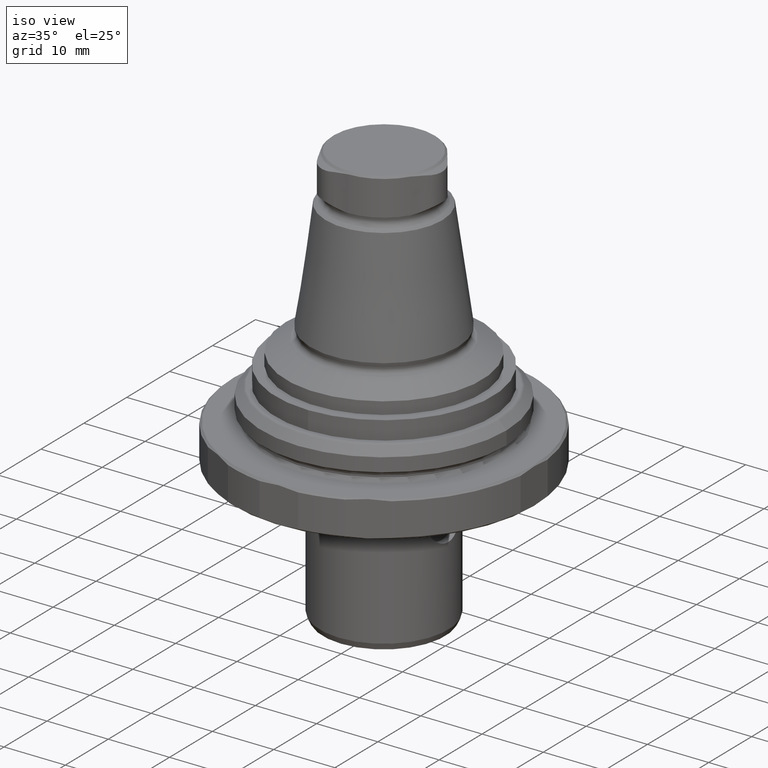
[diagram: clean part render]
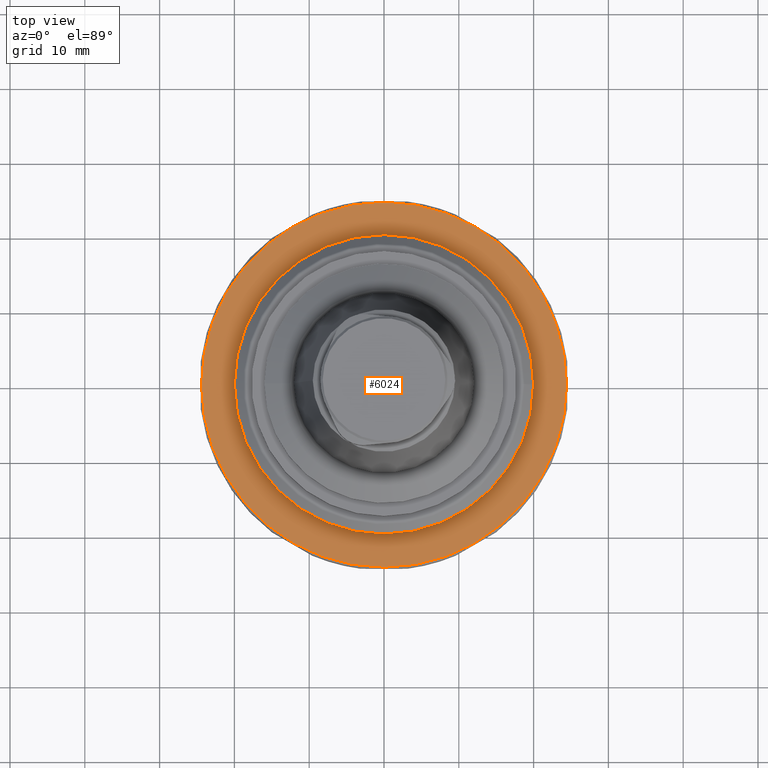
[diagram: tour spotlight — one face highlighted and labeled with its STEP entity id]
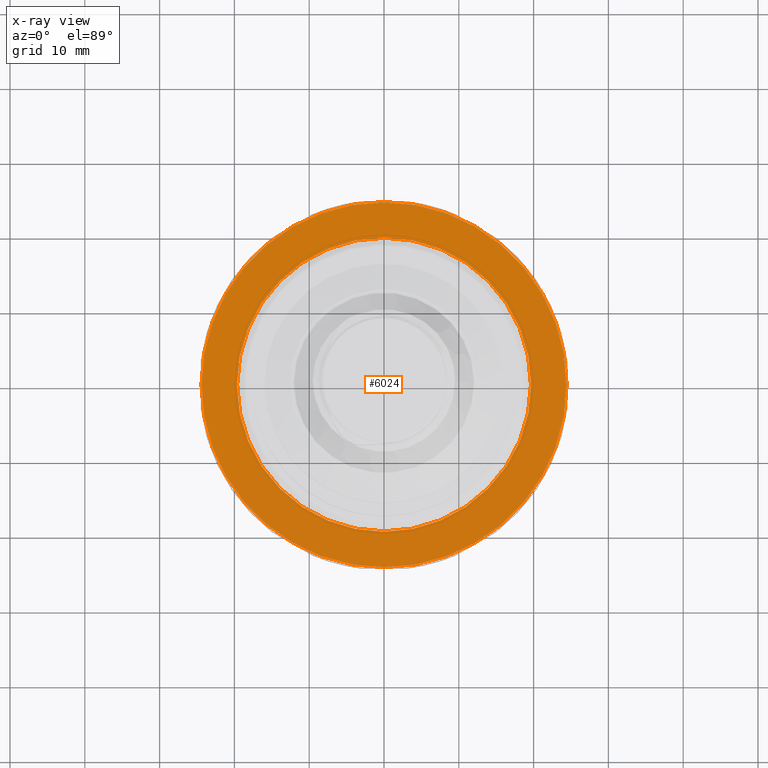
[diagram: x-ray of the same camera — body ghosted, this tour face saturated]
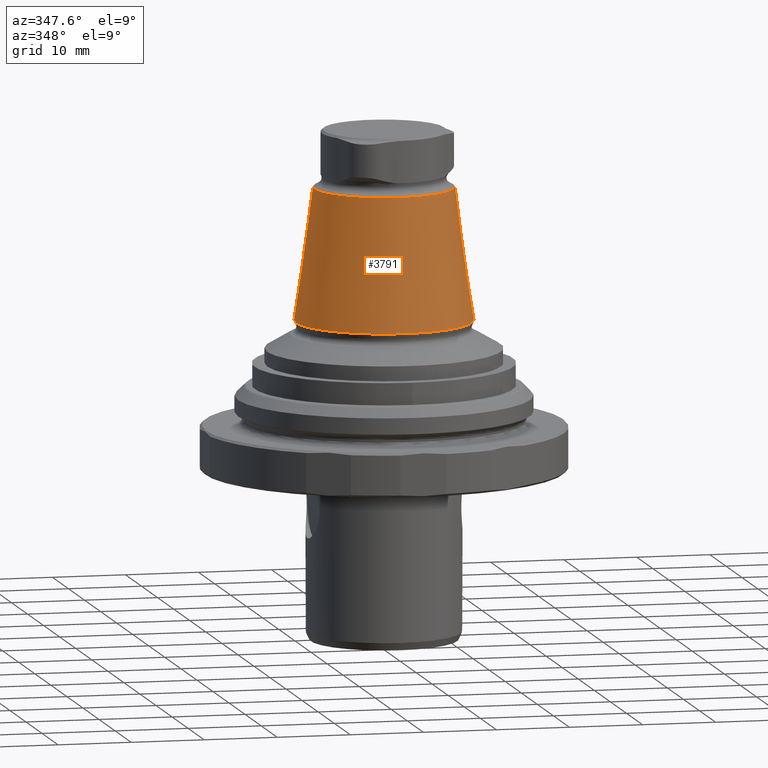
[diagram: tour spotlight — one face highlighted and labeled with its STEP entity id]
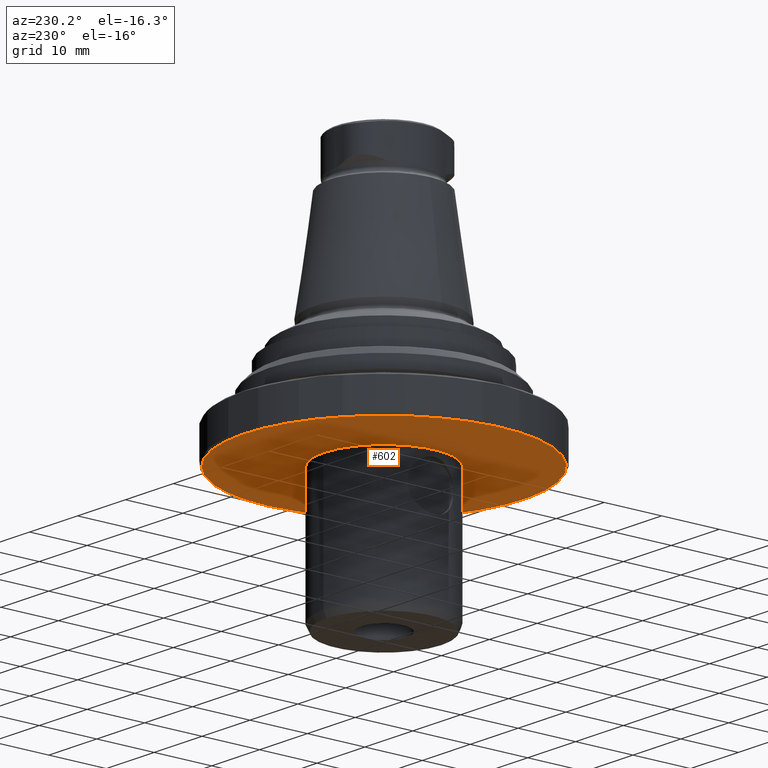
[diagram: tour spotlight — one face highlighted and labeled with its STEP entity id]
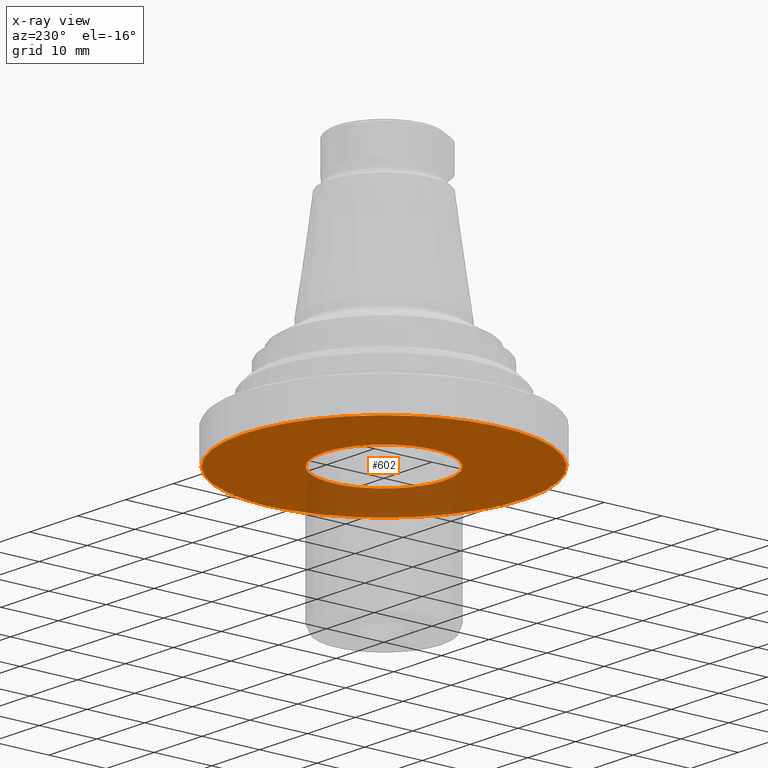
[diagram: x-ray of the same camera — body ghosted, this tour face saturated]
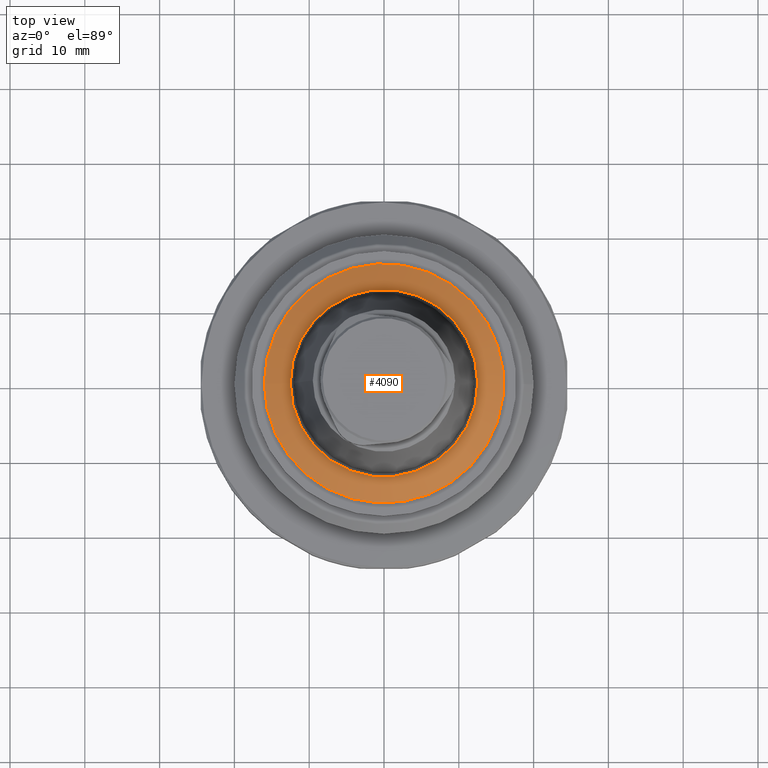
[diagram: tour spotlight — one face highlighted and labeled with its STEP entity id]
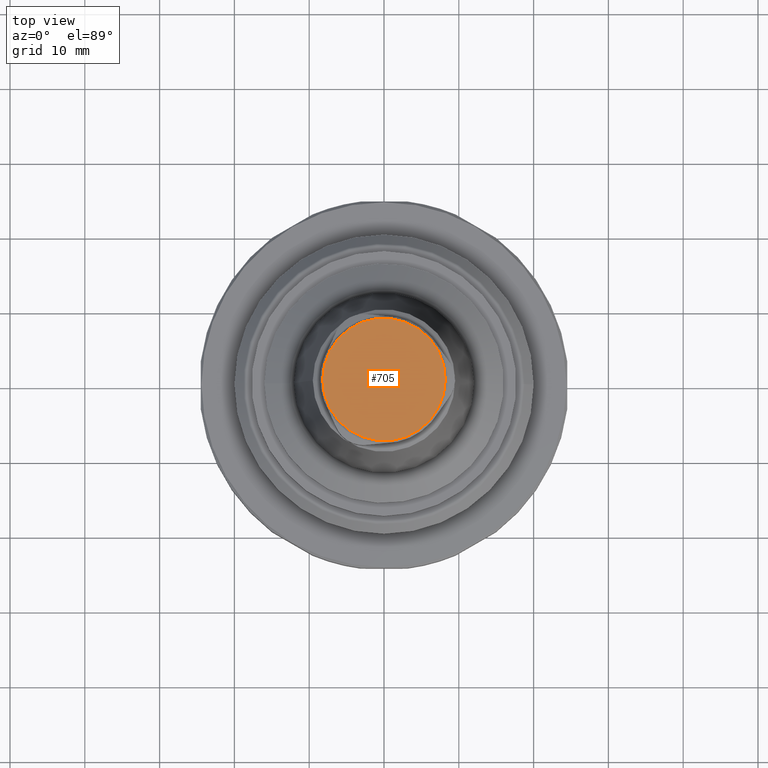
[diagram: tour spotlight — one face highlighted and labeled with its STEP entity id]
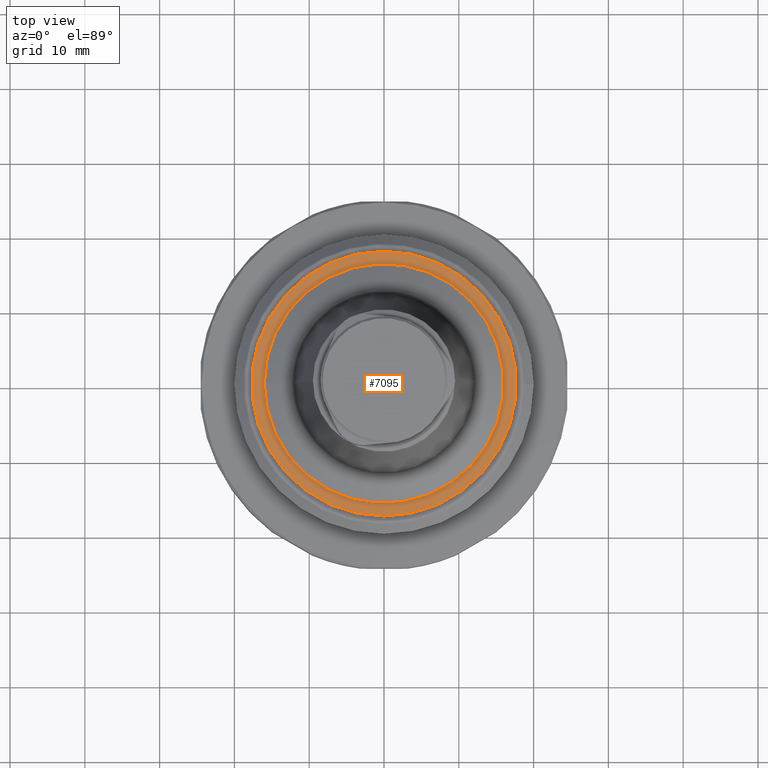
[diagram: tour spotlight — one face highlighted and labeled with its STEP entity id]
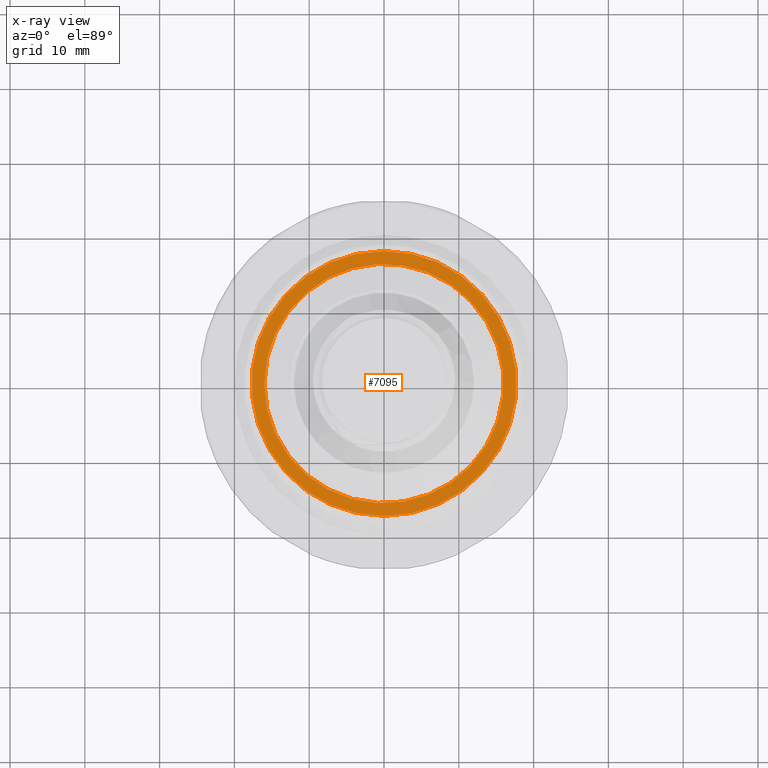
[diagram: x-ray of the same camera — body ghosted, this tour face saturated]
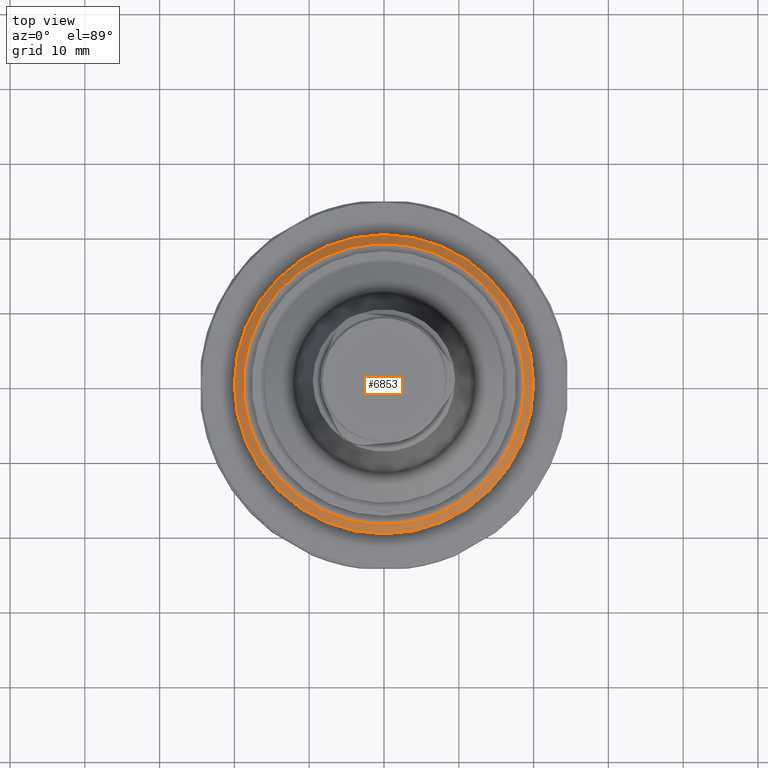
[diagram: tour spotlight — one face highlighted and labeled with its STEP entity id]
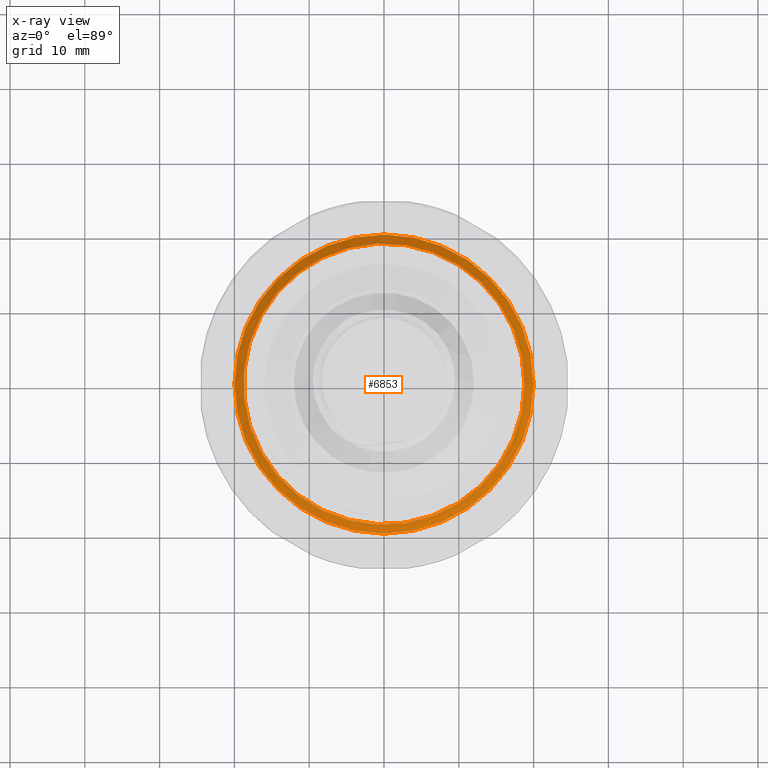
[diagram: x-ray of the same camera — body ghosted, this tour face saturated]
A machine part: a face-by-face anatomy tour. The part has 66 B-rep faces; the first image is the clean iso view, then the 7 largest visible faces are spotlighted one at a time (largest first), each with its STEP entity span.

Face 1 — top view, entity #6024. An x-ray twin of the same camera follows (body ghosted, this face saturated) — the face is partly hidden behind the body. In plain terms, the highlighted planar face has unit normal (-0, 0, -1).
Definition (entity closure, byte-faithful):
#4238 = CONICAL_SURFACE('',#4239,24.4,0.785398163398);
#4239 = AXIS2_PLACEMENT_3D('',#4240,#4241,#4242);
#4240 = CARTESIAN_POINT('',(-1.407041003276E-017,-9.089951014118E-016,
    -1.));
#4241 = DIRECTION('',(-2.605631487548E-018,5.607991387788E-033,-1.));
#4242 = DIRECTION('',(1.,-2.440810140808E-016,-2.605631487548E-018));
#4948 = VERTEX_POINT('',#4949);
#4949 = CARTESIAN_POINT('',(24.4,-6.864571844983E-015,-1.));
#4969 = EDGE_CURVE('',#4948,#4948,#4970,.T.);
#4970 = SURFACE_CURVE('',#4971,(#4976,#5005),.PCURVE_S1.);
#4971 = CIRCLE('',#4972,24.4);
#4972 = AXIS2_PLACEMENT_3D('',#4973,#4974,#4975);
#4973 = CARTESIAN_POINT('',(-1.407041003276E-017,-9.089951014118E-016,
    -1.));
#4974 = DIRECTION('',(-2.605631487548E-018,5.607991387788E-033,-1.));
#4975 = DIRECTION('',(1.,-2.440810140808E-016,-2.605631487548E-018));
#4976 = PCURVE('',#4238,#4977);
#4977 = DEFINITIONAL_REPRESENTATION('',(#4978),#5004);
#4978 = B_SPLINE_CURVE_WITH_KNOTS('',3,(#4979,#4980,#4981,#4982,#4983,
    #4984,#4985,#4986,#4987,#4988,#4989,#4990,#4991,#4992,#4993,#4994,
    #4995,#4996,#4997,#4998,#4999,#5000,#5001,#5002,#5003),
  .UNSPECIFIED.,.F.,.F.,(4,1,1,1,1,1,1,1,1,1,1,1,1,1,1,1,1,1,1,1,1,1,4),
  (0.E+000,0.285599332145,0.571198664289,0.856797996434,1.142397328578,
    1.427996660723,1.713595992867,1.999195325012,2.284794657156,
    2.570393989301,2.855993321445,3.14159265359,3.427191985734,
    3.712791317879,3.998390650023,4.283989982168,4.569589314312,
    4.855188646457,5.140787978601,5.426387310746,5.711986642891,
    5.997585975035,6.28318530718),.QUASI_UNIFORM_KNOTS.);
#4979 = CARTESIAN_POINT('',(0.E+000,-5.551115123121E-017));
#4980 = CARTESIAN_POINT('',(9.519977738151E-002,-1.853455660555E-015));
#4981 = CARTESIAN_POINT('',(0.285599332145,-2.476382663924E-015));
#4982 = CARTESIAN_POINT('',(0.571198664289,4.563148707783E-016));
#4983 = CARTESIAN_POINT('',(0.856797996434,6.51123180811E-016));
#4984 = CARTESIAN_POINT('',(1.142397328578,-3.060807594022E-015));
#4985 = CARTESIAN_POINT('',(1.427996660723,9.339661588773E-016));
#4986 = CARTESIAN_POINT('',(1.713595992867,-6.750570414868E-016));
#4987 = CARTESIAN_POINT('',(1.999195325012,1.76626200707E-015));
#4988 = CARTESIAN_POINT('',(2.284794657156,-6.389990986793E-015));
#4989 = CARTESIAN_POINT('',(2.570393989301,2.477419867298E-015));
#4990 = CARTESIAN_POINT('',(2.855993321445,-3.5196884824E-015));
#4991 = CARTESIAN_POINT('',(3.14159265359,9.431930259018E-016));
#4992 = CARTESIAN_POINT('',(3.427191985734,-2.530836212069E-016));
#4993 = CARTESIAN_POINT('',(3.712791317879,6.914145892594E-017));
#4994 = CARTESIAN_POINT('',(3.998390650023,-2.348221449682E-017));
#4995 = CARTESIAN_POINT('',(4.283989982168,2.478739906135E-017));
#4996 = CARTESIAN_POINT('',(4.569589314312,-7.566738174856E-017));
#4997 = CARTESIAN_POINT('',(4.855188646457,2.778821279329E-016));
#4998 = CARTESIAN_POINT('',(5.140787978601,-1.035861129983E-015));
#4999 = CARTESIAN_POINT('',(5.426387310746,3.865562391999E-015));
#5000 = CARTESIAN_POINT('',(5.711986642891,-3.768247401613E-015));
#5001 = CARTESIAN_POINT('',(5.997585975035,5.492861780496E-016));
#5002 = CARTESIAN_POINT('',(6.187985529798,1.008452580701E-015));
#5003 = CARTESIAN_POINT('',(6.28318530718,-5.551115123121E-017));
#5004 = ( GEOMETRIC_REPRESENTATION_CONTEXT(2) 
PARAMETRIC_REPRESENTATION_CONTEXT() REPRESENTATION_CONTEXT('2D SPACE',''
  ) );
#5005 = PCURVE('',#5006,#5011);
#5006 = PLANE('',#5007);
#5007 = AXIS2_PLACEMENT_3D('',#5008,#5009,#5010);
#5008 = CARTESIAN_POINT('',(19.65,-5.7051870281E-015,-1.));
#5009 = DIRECTION('',(-2.605631487548E-018,5.607991387788E-033,-1.));
#5010 = DIRECTION('',(1.,-2.440810140808E-016,-2.605631487548E-018));
#5011 = DEFINITIONAL_REPRESENTATION('',(#5012),#5016);
#5012 = CIRCLE('',#5013,24.4);
#5013 = AXIS2_PLACEMENT_2D('',#5014,#5015);
#5014 = CARTESIAN_POINT('',(-19.65,-3.944304526105E-030));
#5015 = DIRECTION('',(1.,1.295521594224E-050));
#5016 = ( GEOMETRIC_REPRESENTATION_CONTEXT(2) 
PARAMETRIC_REPRESENTATION_CONTEXT() REPRESENTATION_CONTEXT('2D SPACE',''
  ) );
#6024 = ADVANCED_FACE('',(#6025,#6078),#5006,.F.);
#6025 = FACE_BOUND('',#6026,.T.);
#6026 = EDGE_LOOP('',(#6027));
#6027 = ORIENTED_EDGE('',*,*,#6028,.T.);
#6028 = EDGE_CURVE('',#6029,#6029,#6031,.T.);
#6029 = VERTEX_POINT('',#6030);
#6030 = CARTESIAN_POINT('',(19.65,-5.7051870281E-015,-1.));
#6031 = SURFACE_CURVE('',#6032,(#6037,#6044),.PCURVE_S1.);
#6032 = CIRCLE('',#6033,19.65);
#6033 = AXIS2_PLACEMENT_3D('',#6034,#6035,#6036);
#6034 = CARTESIAN_POINT('',(-1.407041003276E-017,-9.089951014118E-016,
    -1.));
#6035 = DIRECTION('',(-2.605631487548E-018,5.607991387788E-033,-1.));
#6036 = DIRECTION('',(1.,-2.440810140808E-016,-2.605631487548E-018));
#6037 = PCURVE('',#5006,#6038);
#6038 = DEFINITIONAL_REPRESENTATION('',(#6039),#6043);
#6039 = CIRCLE('',#6040,19.65);
#6040 = AXIS2_PLACEMENT_2D('',#6041,#6042);
#6041 = CARTESIAN_POINT('',(-19.65,-3.944304526105E-030));
#6042 = DIRECTION('',(1.,1.295521594224E-050));
#6043 = ( GEOMETRIC_REPRESENTATION_CONTEXT(2) 
PARAMETRIC_REPRESENTATION_CONTEXT() REPRESENTATION_CONTEXT('2D SPACE',''
  ) );
#6044 = PCURVE('',#6045,#6050);
#6045 = TOROIDAL_SURFACE('',#6046,19.65,0.6);
#6046 = AXIS2_PLACEMENT_3D('',#6047,#6048,#6049);
#6047 = CARTESIAN_POINT('',(-1.250703114023E-017,-9.089951014118E-016,
    -0.4));
#6048 = DIRECTION('',(-2.605631487548E-018,5.607991387788E-033,-1.));
#6049 = DIRECTION('',(1.,-2.440810140808E-016,-2.605631487548E-018));
#6050 = DEFINITIONAL_REPRESENTATION('',(#6051),#6077);
#6051 = B_SPLINE_CURVE_WITH_KNOTS('',3,(#6052,#6053,#6054,#6055,#6056,
    #6057,#6058,#6059,#6060,#6061,#6062,#6063,#6064,#6065,#6066,#6067,
    #6068,#6069,#6070,#6071,#6072,#6073,#6074,#6075,#6076),
  .UNSPECIFIED.,.F.,.F.,(4,1,1,1,1,1,1,1,1,1,1,1,1,1,1,1,1,1,1,1,1,1,4),
  (0.E+000,0.285599332145,0.571198664289,0.856797996434,1.142397328578,
    1.427996660723,1.713595992867,1.999195325012,2.284794657156,
    2.570393989301,2.855993321445,3.14159265359,3.427191985734,
    3.712791317879,3.998390650023,4.283989982168,4.569589314312,
    4.855188646457,5.140787978601,5.426387310746,5.711986642891,
    5.997585975035,6.28318530718),.QUASI_UNIFORM_KNOTS.);
#6052 = CARTESIAN_POINT('',(0.E+000,7.853981633974));
#6053 = CARTESIAN_POINT('',(9.519977738151E-002,7.853981633974));
#6054 = CARTESIAN_POINT('',(0.285599332145,7.853981633974));
#6055 = CARTESIAN_POINT('',(0.571198664289,7.853981633974));
#6056 = CARTESIAN_POINT('',(0.856797996434,7.853981633974));
#6057 = CARTESIAN_POINT('',(1.142397328578,7.853981633974));
#6058 = CARTESIAN_POINT('',(1.427996660723,7.853981633974));
#6059 = CARTESIAN_POINT('',(1.713595992867,7.853981633974));
#6060 = CARTESIAN_POINT('',(1.999195325012,7.853981633974));
#6061 = CARTESIAN_POINT('',(2.284794657156,7.853981633974));
#6062 = CARTESIAN_POINT('',(2.570393989301,7.853981633974));
#6063 = CARTESIAN_POINT('',(2.855993321445,7.853981633974));
#6064 = CARTESIAN_POINT('',(3.14159265359,7.853981633974));
#6065 = CARTESIAN_POINT('',(3.427191985734,7.853981633974));
#6066 = CARTESIAN_POINT('',(3.712791317879,7.853981633974));
#6067 = CARTESIAN_POINT('',(3.998390650023,7.853981633974));
#6068 = CARTESIAN_POINT('',(4.283989982168,7.853981633974));
#6069 = CARTESIAN_POINT('',(4.569589314312,7.853981633974));
#6070 = CARTESIAN_POINT('',(4.855188646457,7.853981633974));
#6071 = CARTESIAN_POINT('',(5.140787978601,7.853981633974));
#6072 = CARTESIAN_POINT('',(5.426387310746,7.853981633974));
#6073 = CARTESIAN_POINT('',(5.711986642891,7.853981633974));
#6074 = CARTESIAN_POINT('',(5.997585975035,7.853981633974));
#6075 = CARTESIAN_POINT('',(6.187985529798,7.853981633974));
#6076 = CARTESIAN_POINT('',(6.28318530718,7.853981633974));
#6077 = ( GEOMETRIC_REPRESENTATION_CONTEXT(2) 
PARAMETRIC_REPRESENTATION_CONTEXT() REPRESENTATION_CONTEXT('2D SPACE',''
  ) );
#6078 = FACE_BOUND('',#6079,.T.);
#6079 = EDGE_LOOP('',(#6080));
#6080 = ORIENTED_EDGE('',*,*,#4969,.F.);

Face 2 — auxiliary view, entity #3791. In plain terms, the highlighted conical surface has half-angle 7.95 deg.
Definition (entity closure, byte-faithful):
#3644 = CONICAL_SURFACE('',#3645,9.520442454686,1.047197551197);
#3645 = AXIS2_PLACEMENT_3D('',#3646,#3647,#3648);
#3646 = CARTESIAN_POINT('',(2.888894916581E-031,-9.089951014118E-016,
    31.203776358826));
#3647 = DIRECTION('',(0.E+000,0.E+000,-1.));
#3648 = DIRECTION('',(-1.,3.347474207549E-017,0.E+000));
#3722 = VERTEX_POINT('',#3723);
#3723 = CARTESIAN_POINT('',(-9.520442454686,-5.903007457967E-016,
    31.203776358826));
#3743 = EDGE_CURVE('',#3722,#3722,#3744,.T.);
#3744 = SURFACE_CURVE('',#3745,(#3750,#3779),.PCURVE_S1.);
#3745 = CIRCLE('',#3746,9.520442454686);
#3746 = AXIS2_PLACEMENT_3D('',#3747,#3748,#3749);
#3747 = CARTESIAN_POINT('',(2.888894916581E-031,-9.089951014118E-016,
    31.203776358826));
#3748 = DIRECTION('',(0.E+000,0.E+000,-1.));
#3749 = DIRECTION('',(-1.,3.347474207549E-017,0.E+000));
#3750 = PCURVE('',#3644,#3751);
#3751 = DEFINITIONAL_REPRESENTATION('',(#3752),#3778);
#3752 = B_SPLINE_CURVE_WITH_KNOTS('',3,(#3753,#3754,#3755,#3756,#3757,
    #3758,#3759,#3760,#3761,#3762,#3763,#3764,#3765,#3766,#3767,#3768,
    #3769,#3770,#3771,#3772,#3773,#3774,#3775,#3776,#3777),
  .UNSPECIFIED.,.F.,.F.,(4,1,1,1,1,1,1,1,1,1,1,1,1,1,1,1,1,1,1,1,1,1,4),
  (0.E+000,0.285599332145,0.571198664289,0.856797996434,1.142397328578,
    1.427996660723,1.713595992867,1.999195325012,2.284794657156,
    2.570393989301,2.855993321445,3.14159265359,3.427191985734,
    3.712791317879,3.998390650023,4.283989982168,4.569589314312,
    4.855188646457,5.140787978601,5.426387310746,5.711986642891,
    5.997585975035,6.28318530718),.QUASI_UNIFORM_KNOTS.);
#3753 = CARTESIAN_POINT('',(0.E+000,0.E+000));
#3754 = CARTESIAN_POINT('',(9.519977738151E-002,-3.845925372767E-016));
#3755 = CARTESIAN_POINT('',(0.285599332145,-2.113388415911E-016));
#3756 = CARTESIAN_POINT('',(0.571198664289,1.316574751484E-015));
#3757 = CARTESIAN_POINT('',(0.856797996434,-4.398497170235E-016));
#3758 = CARTESIAN_POINT('',(1.142397328578,4.428241166103E-016));
#3759 = CARTESIAN_POINT('',(1.427996660723,-1.331446749418E-015));
#3760 = CARTESIAN_POINT('',(1.713595992867,2.678524337397E-016));
#3761 = CARTESIAN_POINT('',(1.999195325012,2.600370144589E-016));
#3762 = CARTESIAN_POINT('',(2.284794657156,-1.308000491575E-015));
#3763 = CARTESIAN_POINT('',(2.570393989301,3.568545045216E-016));
#3764 = CARTESIAN_POINT('',(2.855993321445,-1.194175265112E-016));
#3765 = CARTESIAN_POINT('',(3.14159265359,1.208156015233E-016));
#3766 = CARTESIAN_POINT('',(3.427191985734,-3.638448795821E-016));
#3767 = CARTESIAN_POINT('',(3.712791317879,1.334563916805E-015));
#3768 = CARTESIAN_POINT('',(3.998390650023,-3.593003403173E-016));
#3769 = CARTESIAN_POINT('',(4.283989982168,1.026374444643E-016));
#3770 = CARTESIAN_POINT('',(4.569589314312,-5.124943754002E-017));
#3771 = CARTESIAN_POINT('',(4.855188646457,1.023603056958E-016));
#3772 = CARTESIAN_POINT('',(5.140787978601,-3.58191785243E-016));
#3773 = CARTESIAN_POINT('',(5.426387310746,1.330406835276E-015));
#3774 = CARTESIAN_POINT('',(5.711986642891,-3.483251085417E-016));
#3775 = CARTESIAN_POINT('',(5.997585975035,6.289359889031E-017));
#3776 = CARTESIAN_POINT('',(6.187985529798,8.546500828371E-017));
#3777 = CARTESIAN_POINT('',(6.28318530718,0.E+000));
#3778 = ( GEOMETRIC_REPRESENTATION_CONTEXT(2) 
PARAMETRIC_REPRESENTATION_CONTEXT() REPRESENTATION_CONTEXT('2D SPACE',''
  ) );
#3779 = PCURVE('',#3780,#3785);
#3780 = CONICAL_SURFACE('',#3781,12.038904202896,0.138753675534);
#3781 = AXIS2_PLACEMENT_3D('',#3782,#3783,#3784);
#3782 = CARTESIAN_POINT('',(2.888894916581E-031,-9.089951014118E-016,
    13.169813232618));
#3783 = DIRECTION('',(0.E+000,0.E+000,-1.));
#3784 = DIRECTION('',(-1.,3.347474207549E-017,0.E+000));
#3785 = DEFINITIONAL_REPRESENTATION('',(#3786),#3789);
#3786 = B_SPLINE_CURVE_WITH_KNOTS('',1,(#3787,#3788),.UNSPECIFIED.,.F.,
  .F.,(2,2),(0.E+000,6.28318530718),.PIECEWISE_BEZIER_KNOTS.);
#3787 = CARTESIAN_POINT('',(0.E+000,-18.0339631262));
#3788 = CARTESIAN_POINT('',(6.28318530718,-18.0339631262));
#3789 = ( GEOMETRIC_REPRESENTATION_CONTEXT(2) 
PARAMETRIC_REPRESENTATION_CONTEXT() REPRESENTATION_CONTEXT('2D SPACE',''
  ) );
#3791 = ADVANCED_FACE('',(#3792),#3780,.T.);
#3792 = FACE_BOUND('',#3793,.T.);
#3793 = EDGE_LOOP('',(#3794,#3795,#3817,#3888));
#3794 = ORIENTED_EDGE('',*,*,#3743,.T.);
#3795 = ORIENTED_EDGE('',*,*,#3796,.T.);
#3796 = EDGE_CURVE('',#3722,#3797,#3799,.T.);
#3797 = VERTEX_POINT('',#3798);
#3798 = CARTESIAN_POINT('',(-12.03890420289,-5.059958883484E-016,
    13.169813232618));
#3799 = SEAM_CURVE('',#3800,(#3803,#3810),.PCURVE_S1.);
#3800 = B_SPLINE_CURVE_WITH_KNOTS('',1,(#3801,#3802),.UNSPECIFIED.,.F.,
  .F.,(2,2),(-18.20896690135,0.E+000),.PIECEWISE_BEZIER_KNOTS.);
#3801 = CARTESIAN_POINT('',(-9.520442454686,-5.903007457967E-016,
    31.203776358826));
#3802 = CARTESIAN_POINT('',(-12.03890420289,-5.059958883484E-016,
    13.169813232618));
#3803 = PCURVE('',#3780,#3804);
#3804 = DEFINITIONAL_REPRESENTATION('',(#3805),#3809);
#3805 = LINE('',#3806,#3807);
#3806 = CARTESIAN_POINT('',(6.28318530718,0.E+000));
#3807 = VECTOR('',#3808,1.);
#3808 = DIRECTION('',(0.E+000,1.));
#3809 = ( GEOMETRIC_REPRESENTATION_CONTEXT(2) 
PARAMETRIC_REPRESENTATION_CONTEXT() REPRESENTATION_CONTEXT('2D SPACE',''
  ) );
#3810 = PCURVE('',#3780,#3811);
#3811 = DEFINITIONAL_REPRESENTATION('',(#3812),#3816);
#3812 = LINE('',#3813,#3814);
#3813 = CARTESIAN_POINT('',(0.E+000,0.E+000));
#3814 = VECTOR('',#3815,1.);
#3815 = DIRECTION('',(0.E+000,1.));
#3816 = ( GEOMETRIC_REPRESENTATION_CONTEXT(2) 
PARAMETRIC_REPRESENTATION_CONTEXT() REPRESENTATION_CONTEXT('2D SPACE',''
  ) );
#3817 = ORIENTED_EDGE('',*,*,#3818,.F.);
#3818 = EDGE_CURVE('',#3797,#3797,#3819,.T.);
#3819 = SURFACE_CURVE('',#3820,(#3825,#3854),.PCURVE_S1.);
#3820 = CIRCLE('',#3821,12.038904202896);
#3821 = AXIS2_PLACEMENT_3D('',#3822,#3823,#3824);
#3822 = CARTESIAN_POINT('',(2.888894916581E-031,-9.089951014118E-016,
    13.169813232618));
#3823 = DIRECTION('',(0.E+000,0.E+000,-1.));
#3824 = DIRECTION('',(-1.,3.347474207549E-017,0.E+000));
#3825 = PCURVE('',#3780,#3826);
#3826 = DEFINITIONAL_REPRESENTATION('',(#3827),#3853);
#3827 = B_SPLINE_CURVE_WITH_KNOTS('',3,(#3828,#3829,#3830,#3831,#3832,
    #3833,#3834,#3835,#3836,#3837,#3838,#3839,#3840,#3841,#3842,#3843,
    #3844,#3845,#3846,#3847,#3848,#3849,#3850,#3851,#3852),
  .UNSPECIFIED.,.F.,.F.,(4,1,1,1,1,1,1,1,1,1,1,1,1,1,1,1,1,1,1,1,1,1,4),
  (0.E+000,0.285599332145,0.571198664289,0.856797996434,1.142397328578,
    1.427996660723,1.713595992867,1.999195325012,2.284794657156,
    2.570393989301,2.855993321445,3.14159265359,3.427191985734,
    3.712791317879,3.998390650023,4.283989982168,4.569589314312,
    4.855188646457,5.140787978601,5.426387310746,5.711986642891,
    5.997585975035,6.28318530718),.QUASI_UNIFORM_KNOTS.);
#3828 = CARTESIAN_POINT('',(0.E+000,0.E+000));
#3829 = CARTESIAN_POINT('',(9.519977738151E-002,-3.649869988808E-016));
#3830 = CARTESIAN_POINT('',(0.285599332145,-4.039174917071E-016));
#3831 = CARTESIAN_POINT('',(0.571198664289,5.012437237728E-016));
#3832 = CARTESIAN_POINT('',(0.856797996434,-1.411094078608E-016));
#3833 = CARTESIAN_POINT('',(1.142397328578,6.319390767042E-017));
#3834 = CARTESIAN_POINT('',(1.427996660723,-1.116662228209E-016));
#3835 = CARTESIAN_POINT('',(1.713595992867,3.834709836131E-016));
#3836 = CARTESIAN_POINT('',(1.999195325012,3.773028389172E-017));
#3837 = CARTESIAN_POINT('',(2.284794657156,-5.3439211918E-016));
#3838 = CARTESIAN_POINT('',(2.570393989301,6.39890197305E-016));
#3839 = CARTESIAN_POINT('',(2.855993321445,-5.652206745168E-016));
#3840 = CARTESIAN_POINT('',(3.14159265359,1.61044505239E-016));
#3841 = CARTESIAN_POINT('',(3.427191985734,-7.895734643937E-017));
#3842 = CARTESIAN_POINT('',(3.712791317879,1.547848805184E-016));
#3843 = CARTESIAN_POINT('',(3.998390650023,-5.401821756344E-016));
#3844 = CARTESIAN_POINT('',(4.283989982168,5.459958264959E-016));
#3845 = CARTESIAN_POINT('',(4.569589314312,-1.838531348261E-016));
#3846 = CARTESIAN_POINT('',(4.855188646457,1.894167128084E-016));
#3847 = CARTESIAN_POINT('',(5.140787978601,-5.738137164077E-016));
#3848 = CARTESIAN_POINT('',(5.426387310746,6.458901572991E-016));
#3849 = CARTESIAN_POINT('',(5.711986642891,-5.497989172654E-016));
#3850 = CARTESIAN_POINT('',(5.997585975035,9.335751623951E-017));
#3851 = CARTESIAN_POINT('',(6.187985529798,1.486984069514E-016));
#3852 = CARTESIAN_POINT('',(6.28318530718,0.E+000));
#3853 = ( GEOMETRIC_REPRESENTATION_CONTEXT(2) 
PARAMETRIC_REPRESENTATION_CONTEXT() REPRESENTATION_CONTEXT('2D SPACE',''
  ) );
#3854 = PCURVE('',#3855,#3860);
#3855 = CONICAL_SURFACE('',#3856,11.783245903371,0.349065850399);
#3856 = AXIS2_PLACEMENT_3D('',#3857,#3858,#3859);
#3857 = CARTESIAN_POINT('',(2.888894916581E-031,-9.089951014118E-016,
    12.467397827577));
#3858 = DIRECTION('',(0.E+000,0.E+000,1.));
#3859 = DIRECTION('',(1.,-3.347474207549E-017,0.E+000));
#3860 = DEFINITIONAL_REPRESENTATION('',(#3861),#3887);
#3861 = B_SPLINE_CURVE_WITH_KNOTS('',3,(#3862,#3863,#3864,#3865,#3866,
    #3867,#3868,#3869,#3870,#3871,#3872,#3873,#3874,#3875,#3876,#3877,
    #3878,#3879,#3880,#3881,#3882,#3883,#3884,#3885,#3886),
  .UNSPECIFIED.,.F.,.F.,(4,1,1,1,1,1,1,1,1,1,1,1,1,1,1,1,1,1,1,1,1,1,4),
  (0.E+000,0.285599332145,0.571198664289,0.856797996434,1.142397328578,
    1.427996660723,1.713595992867,1.999195325012,2.284794657156,
    2.570393989301,2.855993321445,3.14159265359,3.427191985734,
    3.712791317879,3.998390650023,4.283989982168,4.569589314312,
    4.855188646457,5.140787978601,5.426387310746,5.711986642891,
    5.997585975035,6.28318530718),.QUASI_UNIFORM_KNOTS.);
#3862 = CARTESIAN_POINT('',(9.424777960769,0.702415405041));
#3863 = CARTESIAN_POINT('',(9.329578183388,0.702415405041));
#3864 = CARTESIAN_POINT('',(9.139178628625,0.702415405041));
#3865 = CARTESIAN_POINT('',(8.85357929648,0.702415405041));
#3866 = CARTESIAN_POINT('',(8.567979964336,0.702415405041));
#3867 = CARTESIAN_POINT('',(8.282380632191,0.702415405041));
#3868 = CARTESIAN_POINT('',(7.996781300047,0.702415405041));
#3869 = CARTESIAN_POINT('',(7.711181967902,0.702415405041));
#3870 = CARTESIAN_POINT('',(7.425582635758,0.702415405041));
#3871 = CARTESIAN_POINT('',(7.139983303613,0.702415405041));
#3872 = CARTESIAN_POINT('',(6.854383971469,0.702415405041));
#3873 = CARTESIAN_POINT('',(6.568784639324,0.702415405041));
#3874 = CARTESIAN_POINT('',(6.28318530718,0.702415405041));
#3875 = CARTESIAN_POINT('',(5.997585975035,0.702415405041));
#3876 = CARTESIAN_POINT('',(5.711986642891,0.702415405041));
#3877 = CARTESIAN_POINT('',(5.426387310746,0.702415405041));
#3878 = CARTESIAN_POINT('',(5.140787978601,0.702415405041));
#3879 = CARTESIAN_POINT('',(4.855188646457,0.702415405041));
#3880 = CARTESIAN_POINT('',(4.569589314312,0.702415405041));
#3881 = CARTESIAN_POINT('',(4.283989982168,0.702415405041));
#3882 = CARTESIAN_POINT('',(3.998390650023,0.702415405041));
#3883 = CARTESIAN_POINT('',(3.712791317879,0.702415405041));
#3884 = CARTESIAN_POINT('',(3.427191985734,0.702415405041));
#3885 = CARTESIAN_POINT('',(3.236792430971,0.702415405041));
#3886 = CARTESIAN_POINT('',(3.14159265359,0.702415405041));
#3887 = ( GEOMETRIC_REPRESENTATION_CONTEXT(2) 
PARAMETRIC_REPRESENTATION_CONTEXT() REPRESENTATION_CONTEXT('2D SPACE',''
  ) );
#3888 = ORIENTED_EDGE('',*,*,#3796,.F.);

Face 3 — auxiliary view, entity #602. An x-ray twin of the same camera follows (body ghosted, this face saturated) — the face is partly hidden behind the body. In plain terms, the highlighted planar face has unit normal (0, 0, -1).
Definition (entity closure, byte-faithful):
#29 = EDGE_CURVE('',#30,#30,#32,.T.);
#30 = VERTEX_POINT('',#31);
#31 = CARTESIAN_POINT('',(-2.914335439641E-016,10.5,-7.));
#32 = SURFACE_CURVE('',#33,(#38,#49),.PCURVE_S1.);
#33 = CIRCLE('',#34,10.5);
#34 = AXIS2_PLACEMENT_3D('',#35,#36,#37);
#35 = CARTESIAN_POINT('',(2.888894916581E-031,-9.089951014118E-016,-7.)
  );
#36 = DIRECTION('',(0.E+000,0.E+000,-1.));
#37 = DIRECTION('',(-2.775557561563E-017,1.,0.E+000));
#38 = PCURVE('',#39,#44);
#39 = CYLINDRICAL_SURFACE('',#40,10.5);
#40 = AXIS2_PLACEMENT_3D('',#41,#42,#43);
#41 = CARTESIAN_POINT('',(2.888894916581E-031,-9.089951014118E-016,-50.)
  );
#42 = DIRECTION('',(0.E+000,0.E+000,-1.));
#43 = DIRECTION('',(-2.775557561563E-017,1.,0.E+000));
#44 = DEFINITIONAL_REPRESENTATION('',(#45),#48);
#45 = B_SPLINE_CURVE_WITH_KNOTS('',1,(#46,#47),.UNSPECIFIED.,.F.,.F.,(2,
    2),(0.E+000,6.28318530718),.PIECEWISE_BEZIER_KNOTS.);
#46 = CARTESIAN_POINT('',(0.E+000,-43.));
#47 = CARTESIAN_POINT('',(6.28318530718,-43.));
#48 = ( GEOMETRIC_REPRESENTATION_CONTEXT(2) 
PARAMETRIC_REPRESENTATION_CONTEXT() REPRESENTATION_CONTEXT('2D SPACE',''
  ) );
#49 = PCURVE('',#50,#55);
#50 = PLANE('',#51);
#51 = AXIS2_PLACEMENT_3D('',#52,#53,#54);
#52 = CARTESIAN_POINT('',(-17.5,-3.231871150908E-016,-7.));
#53 = DIRECTION('',(0.E+000,0.E+000,-1.));
#54 = DIRECTION('',(-1.,3.347474207549E-017,0.E+000));
#55 = DEFINITIONAL_REPRESENTATION('',(#56),#60);
#56 = CIRCLE('',#57,10.5);
#57 = AXIS2_PLACEMENT_2D('',#58,#59);
#58 = CARTESIAN_POINT('',(-17.5,-6.902532920684E-031));
#59 = DIRECTION('',(6.123031769112E-017,1.));
#60 = ( GEOMETRIC_REPRESENTATION_CONTEXT(2) 
PARAMETRIC_REPRESENTATION_CONTEXT() REPRESENTATION_CONTEXT('2D SPACE',''
  ) );
#602 = ADVANCED_FACE('',(#603,#606),#50,.T.);
#603 = FACE_BOUND('',#604,.T.);
#604 = EDGE_LOOP('',(#605));
#605 = ORIENTED_EDGE('',*,*,#29,.F.);
#606 = FACE_BOUND('',#607,.T.);
#607 = EDGE_LOOP('',(#608,#661));
#608 = ORIENTED_EDGE('',*,*,#609,.T.);
#609 = EDGE_CURVE('',#610,#612,#614,.T.);
#610 = VERTEX_POINT('',#611);
#611 = CARTESIAN_POINT('',(24.4,-6.864571844983E-015,-7.));
#612 = VERTEX_POINT('',#613);
#613 = CARTESIAN_POINT('',(-24.20242914979,-3.098777702422,-7.));
#614 = SURFACE_CURVE('',#615,(#620,#627),.PCURVE_S1.);
#615 = CIRCLE('',#616,24.4);
#616 = AXIS2_PLACEMENT_3D('',#617,#618,#619);
#617 = CARTESIAN_POINT('',(-2.970419895804E-017,-9.089951014118E-016,-7.
    ));
#618 = DIRECTION('',(-2.605631487548E-018,5.607991387788E-033,-1.));
#619 = DIRECTION('',(1.,-2.440810140808E-016,-2.605631487548E-018));
#620 = PCURVE('',#50,#621);
#621 = DEFINITIONAL_REPRESENTATION('',(#622),#626);
#622 = CIRCLE('',#623,24.4);
#623 = AXIS2_PLACEMENT_2D('',#624,#625);
#624 = CARTESIAN_POINT('',(-17.5,-6.902532920684E-031));
#625 = DIRECTION('',(-1.,-2.106062720053E-016));
#626 = ( GEOMETRIC_REPRESENTATION_CONTEXT(2) 
PARAMETRIC_REPRESENTATION_CONTEXT() REPRESENTATION_CONTEXT('2D SPACE',''
  ) );
#627 = PCURVE('',#628,#633);
#628 = CONICAL_SURFACE('',#629,24.7,0.785398163397);
#629 = AXIS2_PLACEMENT_3D('',#630,#631,#632);
#630 = CARTESIAN_POINT('',(-2.892250951178E-017,-9.089951014118E-016,
    -6.7));
#631 = DIRECTION('',(2.605631487548E-018,-5.607991387788E-033,1.));
#632 = DIRECTION('',(-1.,2.440810140808E-016,2.605631487548E-018));
#633 = DEFINITIONAL_REPRESENTATION('',(#634),#660);
#634 = B_SPLINE_CURVE_WITH_KNOTS('',3,(#635,#636,#637,#638,#639,#640,
    #641,#642,#643,#644,#645,#646,#647,#648,#649,#650,#651,#652,#653,
    #654,#655,#656,#657,#658,#659),.UNSPECIFIED.,.F.,.F.,(4,1,1,1,1,1,1,
    1,1,1,1,1,1,1,1,1,1,1,1,1,1,1,4),(0.E+000,0.285599332145,
    0.571198664289,0.856797996434,1.142397328578,1.427996660723,
    1.713595992867,1.999195325012,2.284794657156,2.570393989301,
    2.855993321445,3.14159265359,3.427191985734,3.712791317879,
    3.998390650023,4.283989982168,4.569589314312,4.855188646457,
    5.140787978601,5.426387310746,5.711986642891,5.997585975035,
    6.28318530718),.QUASI_UNIFORM_KNOTS.);
#635 = CARTESIAN_POINT('',(3.14159265359,-0.3));
#636 = CARTESIAN_POINT('',(3.046392876208,-0.3));
#637 = CARTESIAN_POINT('',(2.855993321445,-0.3));
#638 = CARTESIAN_POINT('',(2.570393989301,-0.3));
#639 = CARTESIAN_POINT('',(2.284794657156,-0.3));
#640 = CARTESIAN_POINT('',(1.999195325012,-0.3));
#641 = CARTESIAN_POINT('',(1.713595992867,-0.3));
#642 = CARTESIAN_POINT('',(1.427996660723,-0.3));
#643 = CARTESIAN_POINT('',(1.142397328578,-0.3));
#644 = CARTESIAN_POINT('',(0.856797996434,-0.3));
#645 = CARTESIAN_POINT('',(0.571198664289,-0.3));
#646 = CARTESIAN_POINT('',(0.285599332145,-0.3));
#647 = CARTESIAN_POINT('',(0.E+000,-0.3));
#648 = CARTESIAN_POINT('',(-0.285599332145,-0.3));
#649 = CARTESIAN_POINT('',(-0.571198664289,-0.3));
#650 = CARTESIAN_POINT('',(-0.856797996434,-0.3));
#651 = CARTESIAN_POINT('',(-1.142397328578,-0.3));
#652 = CARTESIAN_POINT('',(-1.427996660723,-0.3));
#653 = CARTESIAN_POINT('',(-1.713595992867,-0.3));
#654 = CARTESIAN_POINT('',(-1.999195325012,-0.3));
#655 = CARTESIAN_POINT('',(-2.284794657156,-0.3));
#656 = CARTESIAN_POINT('',(-2.570393989301,-0.3));
#657 = CARTESIAN_POINT('',(-2.855993321445,-0.3));
#658 = CARTESIAN_POINT('',(-3.046392876208,-0.3));
#659 = CARTESIAN_POINT('',(-3.14159265359,-0.3));
#660 = ( GEOMETRIC_REPRESENTATION_CONTEXT(2) 
PARAMETRIC_REPRESENTATION_CONTEXT() REPRESENTATION_CONTEXT('2D SPACE',''
  ) );
#661 = ORIENTED_EDGE('',*,*,#662,.T.);
#662 = EDGE_CURVE('',#612,#610,#663,.T.);
#663 = SURFACE_CURVE('',#664,(#669,#676),.PCURVE_S1.);
#664 = CIRCLE('',#665,24.4);
#665 = AXIS2_PLACEMENT_3D('',#666,#667,#668);
#666 = CARTESIAN_POINT('',(-2.970419895804E-017,-9.089951014118E-016,-7.
    ));
#667 = DIRECTION('',(-2.605631487548E-018,5.607991387788E-033,-1.));
#668 = DIRECTION('',(1.,-2.440810140808E-016,-2.605631487548E-018));
#669 = PCURVE('',#50,#670);
#670 = DEFINITIONAL_REPRESENTATION('',(#671),#675);
#671 = CIRCLE('',#672,24.4);
#672 = AXIS2_PLACEMENT_2D('',#673,#674);
#673 = CARTESIAN_POINT('',(-17.5,-6.902532920684E-031));
#674 = DIRECTION('',(-1.,-2.106062720053E-016));
#675 = ( GEOMETRIC_REPRESENTATION_CONTEXT(2) 
PARAMETRIC_REPRESENTATION_CONTEXT() REPRESENTATION_CONTEXT('2D SPACE',''
  ) );
#676 = PCURVE('',#628,#677);
#677 = DEFINITIONAL_REPRESENTATION('',(#678),#704);
#678 = B_SPLINE_CURVE_WITH_KNOTS('',3,(#679,#680,#681,#682,#683,#684,
    #685,#686,#687,#688,#689,#690,#691,#692,#693,#694,#695,#696,#697,
    #698,#699,#700,#701,#702,#703),.UNSPECIFIED.,.F.,.F.,(4,1,1,1,1,1,1,
    1,1,1,1,1,1,1,1,1,1,1,1,1,1,1,4),(0.E+000,0.285599332145,
    0.571198664289,0.856797996434,1.142397328578,1.427996660723,
    1.713595992867,1.999195325012,2.284794657156,2.570393989301,
    2.855993321445,3.14159265359,3.427191985734,3.712791317879,
    3.998390650023,4.283989982168,4.569589314312,4.855188646457,
    5.140787978601,5.426387310746,5.711986642891,5.997585975035,
    6.28318530718),.QUASI_UNIFORM_KNOTS.);
#679 = CARTESIAN_POINT('',(9.424777960769,-0.3));
#680 = CARTESIAN_POINT('',(9.329578183388,-0.3));
#681 = CARTESIAN_POINT('',(9.139178628625,-0.3));
#682 = CARTESIAN_POINT('',(8.85357929648,-0.3));
#683 = CARTESIAN_POINT('',(8.567979964336,-0.3));
#684 = CARTESIAN_POINT('',(8.282380632191,-0.3));
#685 = CARTESIAN_POINT('',(7.996781300047,-0.3));
#686 = CARTESIAN_POINT('',(7.711181967902,-0.3));
#687 = CARTESIAN_POINT('',(7.425582635758,-0.3));
#688 = CARTESIAN_POINT('',(7.139983303613,-0.3));
#689 = CARTESIAN_POINT('',(6.854383971469,-0.3));
#690 = CARTESIAN_POINT('',(6.568784639324,-0.3));
#691 = CARTESIAN_POINT('',(6.28318530718,-0.3));
#692 = CARTESIAN_POINT('',(5.997585975035,-0.3));
#693 = CARTESIAN_POINT('',(5.711986642891,-0.3));
#694 = CARTESIAN_POINT('',(5.426387310746,-0.3));
#695 = CARTESIAN_POINT('',(5.140787978601,-0.3));
#696 = CARTESIAN_POINT('',(4.855188646457,-0.3));
#697 = CARTESIAN_POINT('',(4.569589314312,-0.3));
#698 = CARTESIAN_POINT('',(4.283989982168,-0.3));
#699 = CARTESIAN_POINT('',(3.998390650023,-0.3));
#700 = CARTESIAN_POINT('',(3.712791317879,-0.3));
#701 = CARTESIAN_POINT('',(3.427191985734,-0.3));
#702 = CARTESIAN_POINT('',(3.236792430971,-0.3));
#703 = CARTESIAN_POINT('',(3.14159265359,-0.3));
#704 = ( GEOMETRIC_REPRESENTATION_CONTEXT(2) 
PARAMETRIC_REPRESENTATION_CONTEXT() REPRESENTATION_CONTEXT('2D SPACE',''
  ) );

Face 4 — top view, entity #4090. In plain terms, the highlighted conical surface has half-angle 60 deg.
Definition (entity closure, byte-faithful):
#3953 = TOROIDAL_SURFACE('',#3954,12.535,0.8);
#3954 = AXIS2_PLACEMENT_3D('',#3955,#3956,#3957);
#3955 = CARTESIAN_POINT('',(2.888894916581E-031,-9.089951014118E-016,
    12.193781712916));
#3956 = DIRECTION('',(0.E+000,0.E+000,-1.));
#3957 = DIRECTION('',(-1.,3.347474207549E-017,0.E+000));
#3993 = VERTEX_POINT('',#3994);
#3994 = CARTESIAN_POINT('',(-12.53589838486,-4.89359136294E-016,
    11.393782217351));
#4019 = EDGE_CURVE('',#3993,#3993,#4020,.T.);
#4020 = SURFACE_CURVE('',#4021,(#4026,#4055),.PCURVE_S1.);
#4021 = CIRCLE('',#4022,12.535898384862);
#4022 = AXIS2_PLACEMENT_3D('',#4023,#4024,#4025);
#4023 = CARTESIAN_POINT('',(2.888894916581E-031,-9.089951014118E-016,
    11.393782217351));
#4024 = DIRECTION('',(0.E+000,0.E+000,-1.));
#4025 = DIRECTION('',(-1.,3.347474207549E-017,0.E+000));
#4026 = PCURVE('',#3953,#4027);
#4027 = DEFINITIONAL_REPRESENTATION('',(#4028),#4054);
#4028 = B_SPLINE_CURVE_WITH_KNOTS('',3,(#4029,#4030,#4031,#4032,#4033,
    #4034,#4035,#4036,#4037,#4038,#4039,#4040,#4041,#4042,#4043,#4044,
    #4045,#4046,#4047,#4048,#4049,#4050,#4051,#4052,#4053),
  .UNSPECIFIED.,.F.,.F.,(4,1,1,1,1,1,1,1,1,1,1,1,1,1,1,1,1,1,1,1,1,1,4),
  (0.E+000,0.285599332145,0.571198664289,0.856797996434,1.142397328578,
    1.427996660723,1.713595992867,1.999195325012,2.284794657156,
    2.570393989301,2.855993321445,3.14159265359,3.427191985734,
    3.712791317879,3.998390650023,4.283989982168,4.569589314312,
    4.855188646457,5.140787978601,5.426387310746,5.711986642891,
    5.997585975035,6.28318530718),.QUASI_UNIFORM_KNOTS.);
#4029 = CARTESIAN_POINT('',(0.E+000,7.852858652661));
#4030 = CARTESIAN_POINT('',(9.519977738151E-002,7.852858652661));
#4031 = CARTESIAN_POINT('',(0.285599332145,7.852858652661));
#4032 = CARTESIAN_POINT('',(0.571198664289,7.852858652661));
#4033 = CARTESIAN_POINT('',(0.856797996434,7.852858652661));
#4034 = CARTESIAN_POINT('',(1.142397328578,7.852858652661));
#4035 = CARTESIAN_POINT('',(1.427996660723,7.852858652661));
#4036 = CARTESIAN_POINT('',(1.713595992867,7.852858652661));
#4037 = CARTESIAN_POINT('',(1.999195325012,7.852858652661));
#4038 = CARTESIAN_POINT('',(2.284794657156,7.852858652661));
#4039 = CARTESIAN_POINT('',(2.570393989301,7.852858652661));
#4040 = CARTESIAN_POINT('',(2.855993321445,7.852858652661));
#4041 = CARTESIAN_POINT('',(3.14159265359,7.852858652661));
#4042 = CARTESIAN_POINT('',(3.427191985734,7.852858652661));
#4043 = CARTESIAN_POINT('',(3.712791317879,7.852858652661));
#4044 = CARTESIAN_POINT('',(3.998390650023,7.852858652661));
#4045 = CARTESIAN_POINT('',(4.283989982168,7.852858652661));
#4046 = CARTESIAN_POINT('',(4.569589314312,7.852858652661));
#4047 = CARTESIAN_POINT('',(4.855188646457,7.852858652661));
#4048 = CARTESIAN_POINT('',(5.140787978601,7.852858652661));
#4049 = CARTESIAN_POINT('',(5.426387310746,7.852858652661));
#4050 = CARTESIAN_POINT('',(5.711986642891,7.852858652661));
#4051 = CARTESIAN_POINT('',(5.997585975035,7.852858652661));
#4052 = CARTESIAN_POINT('',(6.187985529798,7.852858652661));
#4053 = CARTESIAN_POINT('',(6.28318530718,7.852858652661));
#4054 = ( GEOMETRIC_REPRESENTATION_CONTEXT(2) 
PARAMETRIC_REPRESENTATION_CONTEXT() REPRESENTATION_CONTEXT('2D SPACE',''
  ) );
#4055 = PCURVE('',#4056,#4061);
#4056 = CONICAL_SURFACE('',#4057,16.,1.047197551197);
#4057 = AXIS2_PLACEMENT_3D('',#4058,#4059,#4060);
#4058 = CARTESIAN_POINT('',(2.888894916581E-031,-9.089951014118E-016,
    9.393782217351));
#4059 = DIRECTION('',(0.E+000,0.E+000,-1.));
#4060 = DIRECTION('',(-1.,3.347474207549E-017,0.E+000));
#4061 = DEFINITIONAL_REPRESENTATION('',(#4062),#4088);
#4062 = B_SPLINE_CURVE_WITH_KNOTS('',3,(#4063,#4064,#4065,#4066,#4067,
    #4068,#4069,#4070,#4071,#4072,#4073,#4074,#4075,#4076,#4077,#4078,
    #4079,#4080,#4081,#4082,#4083,#4084,#4085,#4086,#4087),
  .UNSPECIFIED.,.F.,.F.,(4,1,1,1,1,1,1,1,1,1,1,1,1,1,1,1,1,1,1,1,1,1,4),
  (0.E+000,0.285599332145,0.571198664289,0.856797996434,1.142397328578,
    1.427996660723,1.713595992867,1.999195325012,2.284794657156,
    2.570393989301,2.855993321445,3.14159265359,3.427191985734,
    3.712791317879,3.998390650023,4.283989982168,4.569589314312,
    4.855188646457,5.140787978601,5.426387310746,5.711986642891,
    5.997585975035,6.28318530718),.QUASI_UNIFORM_KNOTS.);
#4063 = CARTESIAN_POINT('',(0.E+000,-2.));
#4064 = CARTESIAN_POINT('',(9.519977738151E-002,-2.));
#4065 = CARTESIAN_POINT('',(0.285599332145,-2.));
#4066 = CARTESIAN_POINT('',(0.571198664289,-2.));
#4067 = CARTESIAN_POINT('',(0.856797996434,-2.));
#4068 = CARTESIAN_POINT('',(1.142397328578,-2.));
#4069 = CARTESIAN_POINT('',(1.427996660723,-2.));
#4070 = CARTESIAN_POINT('',(1.713595992867,-2.));
#4071 = CARTESIAN_POINT('',(1.999195325012,-2.));
#4072 = CARTESIAN_POINT('',(2.284794657156,-2.));
#4073 = CARTESIAN_POINT('',(2.570393989301,-2.));
#4074 = CARTESIAN_POINT('',(2.855993321445,-2.));
#4075 = CARTESIAN_POINT('',(3.14159265359,-2.));
#4076 = CARTESIAN_POINT('',(3.427191985734,-2.));
#4077 = CARTESIAN_POINT('',(3.712791317879,-2.));
#4078 = CARTESIAN_POINT('',(3.998390650023,-2.));
#4079 = CARTESIAN_POINT('',(4.283989982168,-2.));
#4080 = CARTESIAN_POINT('',(4.569589314312,-2.));
#4081 = CARTESIAN_POINT('',(4.855188646457,-2.));
#4082 = CARTESIAN_POINT('',(5.140787978601,-2.));
#4083 = CARTESIAN_POINT('',(5.426387310746,-2.));
#4084 = CARTESIAN_POINT('',(5.711986642891,-2.));
#4085 = CARTESIAN_POINT('',(5.997585975035,-2.));
#4086 = CARTESIAN_POINT('',(6.187985529798,-2.));
#4087 = CARTESIAN_POINT('',(6.28318530718,-2.));
#4088 = ( GEOMETRIC_REPRESENTATION_CONTEXT(2) 
PARAMETRIC_REPRESENTATION_CONTEXT() REPRESENTATION_CONTEXT('2D SPACE',''
  ) );
#4090 = ADVANCED_FACE('',(#4091),#4056,.T.);
#4091 = FACE_BOUND('',#4092,.T.);
#4092 = EDGE_LOOP('',(#4093,#4094,#4116,#4164));
#4093 = ORIENTED_EDGE('',*,*,#4019,.T.);
#4094 = ORIENTED_EDGE('',*,*,#4095,.T.);
#4095 = EDGE_CURVE('',#3993,#4096,#4098,.T.);
#4096 = VERTEX_POINT('',#4097);
#4097 = CARTESIAN_POINT('',(-16.,-3.73399228204E-016,9.393782217351));
#4098 = SEAM_CURVE('',#4099,(#4102,#4109),.PCURVE_S1.);
#4099 = B_SPLINE_CURVE_WITH_KNOTS('',1,(#4100,#4101),.UNSPECIFIED.,.F.,
  .F.,(2,2),(-4.,0.E+000),.PIECEWISE_BEZIER_KNOTS.);
#4100 = CARTESIAN_POINT('',(-12.53589838486,-4.89359136294E-016,
    11.393782217351));
#4101 = CARTESIAN_POINT('',(-16.,-3.73399228204E-016,9.393782217351));
#4102 = PCURVE('',#4056,#4103);
#4103 = DEFINITIONAL_REPRESENTATION('',(#4104),#4108);
#4104 = LINE('',#4105,#4106);
#4105 = CARTESIAN_POINT('',(6.28318530718,0.E+000));
#4106 = VECTOR('',#4107,1.);
#4107 = DIRECTION('',(0.E+000,1.));
#4108 = ( GEOMETRIC_REPRESENTATION_CONTEXT(2) 
PARAMETRIC_REPRESENTATION_CONTEXT() REPRESENTATION_CONTEXT('2D SPACE',''
  ) );
#4109 = PCURVE('',#4056,#4110);
#4110 = DEFINITIONAL_REPRESENTATION('',(#4111),#4115);
#4111 = LINE('',#4112,#4113);
#4112 = CARTESIAN_POINT('',(0.E+000,0.E+000));
#4113 = VECTOR('',#4114,1.);
#4114 = DIRECTION('',(0.E+000,1.));
#4115 = ( GEOMETRIC_REPRESENTATION_CONTEXT(2) 
PARAMETRIC_REPRESENTATION_CONTEXT() REPRESENTATION_CONTEXT('2D SPACE',''
  ) );
#4116 = ORIENTED_EDGE('',*,*,#4117,.F.);
#4117 = EDGE_CURVE('',#4096,#4096,#4118,.T.);
#4118 = SURFACE_CURVE('',#4119,(#4124,#4153),.PCURVE_S1.);
#4119 = CIRCLE('',#4120,16.);
#4120 = AXIS2_PLACEMENT_3D('',#4121,#4122,#4123);
#4121 = CARTESIAN_POINT('',(2.888894916581E-031,-9.089951014118E-016,
    9.393782217351));
#4122 = DIRECTION('',(0.E+000,0.E+000,-1.));
#4123 = DIRECTION('',(-1.,3.347474207549E-017,0.E+000));
#4124 = PCURVE('',#4056,#4125);
#4125 = DEFINITIONAL_REPRESENTATION('',(#4126),#4152);
#4126 = B_SPLINE_CURVE_WITH_KNOTS('',3,(#4127,#4128,#4129,#4130,#4131,
    #4132,#4133,#4134,#4135,#4136,#4137,#4138,#4139,#4140,#4141,#4142,
    #4143,#4144,#4145,#4146,#4147,#4148,#4149,#4150,#4151),
  .UNSPECIFIED.,.F.,.F.,(4,1,1,1,1,1,1,1,1,1,1,1,1,1,1,1,1,1,1,1,1,1,4),
  (0.E+000,0.285599332145,0.571198664289,0.856797996434,1.142397328578,
    1.427996660723,1.713595992867,1.999195325012,2.284794657156,
    2.570393989301,2.855993321445,3.14159265359,3.427191985734,
    3.712791317879,3.998390650023,4.283989982168,4.569589314312,
    4.855188646457,5.140787978601,5.426387310746,5.711986642891,
    5.997585975035,6.28318530718),.QUASI_UNIFORM_KNOTS.);
#4127 = CARTESIAN_POINT('',(0.E+000,0.E+000));
#4128 = CARTESIAN_POINT('',(9.519977738151E-002,-7.691850745534E-016));
#4129 = CARTESIAN_POINT('',(0.285599332145,-1.082093483981E-015));
#4130 = CARTESIAN_POINT('',(0.571198664289,3.259943584436E-016));
#4131 = CARTESIAN_POINT('',(0.856797996434,-2.218839497931E-016));
#4132 = CARTESIAN_POINT('',(1.142397328578,5.615414407288E-016));
#4133 = CARTESIAN_POINT('',(1.427996660723,-2.024281813122E-015));
#4134 = CARTESIAN_POINT('',(1.713595992867,2.920475364439E-015));
#4135 = CARTESIAN_POINT('',(1.999195325012,-4.273987499937E-016));
#4136 = CARTESIAN_POINT('',(2.284794657156,-1.210880364464E-015));
#4137 = CARTESIAN_POINT('',(2.570393989301,6.558097605304E-016));
#4138 = CARTESIAN_POINT('',(2.855993321445,-1.412358677657E-015));
#4139 = CARTESIAN_POINT('',(3.14159265359,3.785145027783E-016));
#4140 = CARTESIAN_POINT('',(3.427191985734,-1.016993334557E-016));
#4141 = CARTESIAN_POINT('',(3.712791317879,2.828283104462E-017));
#4142 = CARTESIAN_POINT('',(3.998390650023,-1.143199072277E-017));
#4143 = CARTESIAN_POINT('',(4.283989982168,1.744513184645E-017));
#4144 = CARTESIAN_POINT('',(4.569589314312,-5.834853666302E-017));
#4145 = CARTESIAN_POINT('',(4.855188646457,2.159490148056E-016));
#4146 = CARTESIAN_POINT('',(5.140787978601,-8.054475225595E-016));
#4147 = CARTESIAN_POINT('',(5.426387310746,3.005841075432E-015));
#4148 = CARTESIAN_POINT('',(5.711986642891,-1.987695884528E-015));
#4149 = CARTESIAN_POINT('',(5.997585975035,3.298320153606E-016));
#4150 = CARTESIAN_POINT('',(6.187985529798,5.555225538441E-016));
#4151 = CARTESIAN_POINT('',(6.28318530718,0.E+000));
#4152 = ( GEOMETRIC_REPRESENTATION_CONTEXT(2) 
PARAMETRIC_REPRESENTATION_CONTEXT() REPRESENTATION_CONTEXT('2D SPACE',''
  ) );
#4153 = PCURVE('',#4154,#4159);
#4154 = CYLINDRICAL_SURFACE('',#4155,16.);
#4155 = AXIS2_PLACEMENT_3D('',#4156,#4157,#4158);
#4156 = CARTESIAN_POINT('',(2.888894916581E-031,-9.089951014118E-016,
    39.006217782649));
#4157 = DIRECTION('',(0.E+000,0.E+000,-1.));
#4158 = DIRECTION('',(-1.,3.347474207549E-017,0.E+000));
#4159 = DEFINITIONAL_REPRESENTATION('',(#4160),#4163);
#4160 = B_SPLINE_CURVE_WITH_KNOTS('',1,(#4161,#4162),.UNSPECIFIED.,.F.,
  .F.,(2,2),(0.E+000,6.28318530718),.PIECEWISE_BEZIER_KNOTS.);
#4161 = CARTESIAN_POINT('',(0.E+000,29.612435565298));
#4162 = CARTESIAN_POINT('',(6.28318530718,29.612435565298));
#4163 = ( GEOMETRIC_REPRESENTATION_CONTEXT(2) 
PARAMETRIC_REPRESENTATION_CONTEXT() REPRESENTATION_CONTEXT('2D SPACE',''
  ) );
#4164 = ORIENTED_EDGE('',*,*,#4095,.F.);

Face 5 — top view, entity #705. In plain terms, the highlighted planar face has unit normal (0, 0, 1).
Definition (entity closure, byte-faithful):
#705 = ADVANCED_FACE('',(#706),#719,.T.);
#706 = FACE_BOUND('',#707,.T.);
#707 = EDGE_LOOP('',(#708));
#708 = ORIENTED_EDGE('',*,*,#709,.F.);
#709 = EDGE_CURVE('',#710,#710,#712,.T.);
#710 = VERTEX_POINT('',#711);
#711 = CARTESIAN_POINT('',(-8.2,-6.345022163928E-016,39.));
#712 = SURFACE_CURVE('',#713,(#718,#734),.PCURVE_S1.);
#713 = CIRCLE('',#714,8.2);
#714 = AXIS2_PLACEMENT_3D('',#715,#716,#717);
#715 = CARTESIAN_POINT('',(2.888894916581E-031,-9.089951014118E-016,39.)
  );
#716 = DIRECTION('',(0.E+000,0.E+000,-1.));
#717 = DIRECTION('',(-1.,3.347474207549E-017,0.E+000));
#718 = PCURVE('',#719,#724);
#719 = PLANE('',#720);
#720 = AXIS2_PLACEMENT_3D('',#721,#722,#723);
#721 = CARTESIAN_POINT('',(-8.2,-6.345022163928E-016,39.));
#722 = DIRECTION('',(0.E+000,0.E+000,1.));
#723 = DIRECTION('',(1.,-3.347474207549E-017,0.E+000));
#724 = DEFINITIONAL_REPRESENTATION('',(#725),#733);
#725 = ( BOUNDED_CURVE() B_SPLINE_CURVE(2,(#726,#727,#728,#729,#730,#731
,#732),.UNSPECIFIED.,.F.,.F.) B_SPLINE_CURVE_WITH_KNOTS((1,2,2,2,2,1),(
    -2.094395102393,0.E+000,2.094395102393,4.188790204786,6.28318530718,
8.377580409573),.UNSPECIFIED.) CURVE() GEOMETRIC_REPRESENTATION_ITEM() 
RATIONAL_B_SPLINE_CURVE((1.,0.5,1.,0.5,1.,0.5,1.)) REPRESENTATION_ITEM(
  '') );
#726 = CARTESIAN_POINT('',(0.E+000,2.465190328816E-031));
#727 = CARTESIAN_POINT('',(0.E+000,14.202816622065));
#728 = CARTESIAN_POINT('',(12.3,7.101408311032));
#729 = CARTESIAN_POINT('',(24.6,2.008420750602E-015));
#730 = CARTESIAN_POINT('',(12.3,-7.101408311032));
#731 = CARTESIAN_POINT('',(1.24344978758E-014,-14.20281662206));
#732 = CARTESIAN_POINT('',(0.E+000,2.465190328816E-031));
#733 = ( GEOMETRIC_REPRESENTATION_CONTEXT(2) 
PARAMETRIC_REPRESENTATION_CONTEXT() REPRESENTATION_CONTEXT('2D SPACE',''
  ) );
#734 = PCURVE('',#735,#740);
#735 = CONICAL_SURFACE('',#736,8.5,0.785398163397);
#736 = AXIS2_PLACEMENT_3D('',#737,#738,#739);
#737 = CARTESIAN_POINT('',(2.888894916581E-031,-9.089951014118E-016,38.7
    ));
#738 = DIRECTION('',(0.E+000,0.E+000,-1.));
#739 = DIRECTION('',(-1.,3.347474207549E-017,0.E+000));
#740 = DEFINITIONAL_REPRESENTATION('',(#741),#767);
#741 = B_SPLINE_CURVE_WITH_KNOTS('',3,(#742,#743,#744,#745,#746,#747,
    #748,#749,#750,#751,#752,#753,#754,#755,#756,#757,#758,#759,#760,
    #761,#762,#763,#764,#765,#766),.UNSPECIFIED.,.F.,.F.,(4,1,1,1,1,1,1,
    1,1,1,1,1,1,1,1,1,1,1,1,1,1,1,4),(0.E+000,0.285599332145,
    0.571198664289,0.856797996434,1.142397328578,1.427996660723,
    1.713595992867,1.999195325012,2.284794657156,2.570393989301,
    2.855993321445,3.14159265359,3.427191985734,3.712791317879,
    3.998390650023,4.283989982168,4.569589314312,4.855188646457,
    5.140787978601,5.426387310746,5.711986642891,5.997585975035,
    6.28318530718),.QUASI_UNIFORM_KNOTS.);
#742 = CARTESIAN_POINT('',(0.E+000,-0.3));
#743 = CARTESIAN_POINT('',(9.519977738151E-002,-0.3));
#744 = CARTESIAN_POINT('',(0.285599332145,-0.3));
#745 = CARTESIAN_POINT('',(0.571198664289,-0.3));
#746 = CARTESIAN_POINT('',(0.856797996434,-0.3));
#747 = CARTESIAN_POINT('',(1.142397328578,-0.3));
#748 = CARTESIAN_POINT('',(1.427996660723,-0.3));
#749 = CARTESIAN_POINT('',(1.713595992867,-0.3));
#750 = CARTESIAN_POINT('',(1.999195325012,-0.3));
#751 = CARTESIAN_POINT('',(2.284794657156,-0.3));
#752 = CARTESIAN_POINT('',(2.570393989301,-0.3));
#753 = CARTESIAN_POINT('',(2.855993321445,-0.3));
#754 = CARTESIAN_POINT('',(3.14159265359,-0.3));
#755 = CARTESIAN_POINT('',(3.427191985734,-0.3));
#756 = CARTESIAN_POINT('',(3.712791317879,-0.3));
#757 = CARTESIAN_POINT('',(3.998390650023,-0.3));
#758 = CARTESIAN_POINT('',(4.283989982168,-0.3));
#759 = CARTESIAN_POINT('',(4.569589314312,-0.3));
#760 = CARTESIAN_POINT('',(4.855188646457,-0.3));
#761 = CARTESIAN_POINT('',(5.140787978601,-0.3));
#762 = CARTESIAN_POINT('',(5.426387310746,-0.3));
#763 = CARTESIAN_POINT('',(5.711986642891,-0.3));
#764 = CARTESIAN_POINT('',(5.997585975035,-0.3));
#765 = CARTESIAN_POINT('',(6.187985529798,-0.3));
#766 = CARTESIAN_POINT('',(6.28318530718,-0.3));
#767 = ( GEOMETRIC_REPRESENTATION_CONTEXT(2) 
PARAMETRIC_REPRESENTATION_CONTEXT() REPRESENTATION_CONTEXT('2D SPACE',''
  ) );

Face 6 — top view, entity #7095. An x-ray twin of the same camera follows (body ghosted, this face saturated) — the face is partly hidden behind the body. In plain terms, the highlighted planar face has unit normal (0, 0, 1).
Definition (entity closure, byte-faithful):
#4154 = CYLINDRICAL_SURFACE('',#4155,16.);
#4155 = AXIS2_PLACEMENT_3D('',#4156,#4157,#4158);
#4156 = CARTESIAN_POINT('',(2.888894916581E-031,-9.089951014118E-016,
    39.006217782649));
#4157 = DIRECTION('',(0.E+000,0.E+000,-1.));
#4158 = DIRECTION('',(-1.,3.347474207549E-017,0.E+000));
#4171 = VERTEX_POINT('',#4172);
#4172 = CARTESIAN_POINT('',(-16.,-3.73399228204E-016,7.4));
#4192 = EDGE_CURVE('',#4171,#4171,#4193,.T.);
#4193 = SURFACE_CURVE('',#4194,(#4199,#4205),.PCURVE_S1.);
#4194 = CIRCLE('',#4195,16.);
#4195 = AXIS2_PLACEMENT_3D('',#4196,#4197,#4198);
#4196 = CARTESIAN_POINT('',(2.888894916581E-031,-9.089951014118E-016,7.4
    ));
#4197 = DIRECTION('',(0.E+000,0.E+000,-1.));
#4198 = DIRECTION('',(-1.,3.347474207549E-017,0.E+000));
#4199 = PCURVE('',#4154,#4200);
#4200 = DEFINITIONAL_REPRESENTATION('',(#4201),#4204);
#4201 = B_SPLINE_CURVE_WITH_KNOTS('',1,(#4202,#4203),.UNSPECIFIED.,.F.,
  .F.,(2,2),(0.E+000,6.28318530718),.PIECEWISE_BEZIER_KNOTS.);
#4202 = CARTESIAN_POINT('',(0.E+000,31.606217782649));
#4203 = CARTESIAN_POINT('',(6.28318530718,31.606217782649));
#4204 = ( GEOMETRIC_REPRESENTATION_CONTEXT(2) 
PARAMETRIC_REPRESENTATION_CONTEXT() REPRESENTATION_CONTEXT('2D SPACE',''
  ) );
#4205 = PCURVE('',#4206,#4211);
#4206 = PLANE('',#4207);
#4207 = AXIS2_PLACEMENT_3D('',#4208,#4209,#4210);
#4208 = CARTESIAN_POINT('',(2.892656498503E-031,-9.089951014118E-016,7.4
    ));
#4209 = DIRECTION('',(2.605631487548E-018,2.286054209011E-016,1.));
#4210 = DIRECTION('',(1.,8.898993783925E-017,-2.605631487548E-018));
#4211 = DEFINITIONAL_REPRESENTATION('',(#4212),#4220);
#4212 = ( BOUNDED_CURVE() B_SPLINE_CURVE(2,(#4213,#4214,#4215,#4216,
#4217,#4218,#4219),.UNSPECIFIED.,.F.,.F.) B_SPLINE_CURVE_WITH_KNOTS((1,2
    ,2,2,2,1),(-2.094395102393,0.E+000,2.094395102393,4.188790204786,
6.28318530718,8.377580409573),.UNSPECIFIED.) CURVE() 
GEOMETRIC_REPRESENTATION_ITEM() RATIONAL_B_SPLINE_CURVE((1.,0.5,1.,0.5,
1.,0.5,1.)) REPRESENTATION_ITEM('') );
#4213 = CARTESIAN_POINT('',(-16.,1.959434878636E-015));
#4214 = CARTESIAN_POINT('',(-16.,27.712812921102));
#4215 = CARTESIAN_POINT('',(8.,13.856406460551));
#4216 = CARTESIAN_POINT('',(32.,7.88860905221E-031));
#4217 = CARTESIAN_POINT('',(8.,-13.85640646055));
#4218 = CARTESIAN_POINT('',(-16.,-27.7128129211));
#4219 = CARTESIAN_POINT('',(-16.,1.959434878636E-015));
#4220 = ( GEOMETRIC_REPRESENTATION_CONTEXT(2) 
PARAMETRIC_REPRESENTATION_CONTEXT() REPRESENTATION_CONTEXT('2D SPACE',''
  ) );
#6431 = CYLINDRICAL_SURFACE('',#6432,17.7);
#6432 = AXIS2_PLACEMENT_3D('',#6433,#6434,#6435);
#6433 = CARTESIAN_POINT('',(-3.908447231321E-018,-1.251903232764E-015,
    5.9));
#6434 = DIRECTION('',(-2.605631487548E-018,-2.286054209011E-016,-1.));
#6435 = DIRECTION('',(1.,8.898993783925E-017,-2.605631487548E-018));
#7030 = VERTEX_POINT('',#7031);
#7031 = CARTESIAN_POINT('',(6.994183985982E-015,-17.7,7.4));
#7051 = EDGE_CURVE('',#7052,#7030,#7054,.T.);
#7052 = VERTEX_POINT('',#7053);
#7053 = CARTESIAN_POINT('',(-1.67491186771E-015,17.7,7.4));
#7054 = SURFACE_CURVE('',#7055,(#7060,#7066),.PCURVE_S1.);
#7055 = CIRCLE('',#7056,17.7);
#7056 = AXIS2_PLACEMENT_3D('',#7057,#7058,#7059);
#7057 = CARTESIAN_POINT('',(2.892656498503E-031,-9.089951014118E-016,7.4
    ));
#7058 = DIRECTION('',(2.605631487548E-018,2.286054209011E-016,1.));
#7059 = DIRECTION('',(-9.462778913617E-017,1.,-2.286054209011E-016));
#7060 = PCURVE('',#6431,#7061);
#7061 = DEFINITIONAL_REPRESENTATION('',(#7062),#7065);
#7062 = B_SPLINE_CURVE_WITH_KNOTS('',1,(#7063,#7064),.UNSPECIFIED.,.F.,
  .F.,(2,2),(0.E+000,6.28318530718),.PIECEWISE_BEZIER_KNOTS.);
#7063 = CARTESIAN_POINT('',(4.712388980385,-1.5));
#7064 = CARTESIAN_POINT('',(-1.570796326795,-1.5));
#7065 = ( GEOMETRIC_REPRESENTATION_CONTEXT(2) 
PARAMETRIC_REPRESENTATION_CONTEXT() REPRESENTATION_CONTEXT('2D SPACE',''
  ) );
#7066 = PCURVE('',#4206,#7067);
#7067 = DEFINITIONAL_REPRESENTATION('',(#7068),#7072);
#7068 = CIRCLE('',#7069,17.7);
#7069 = AXIS2_PLACEMENT_2D('',#7070,#7071);
#7070 = CARTESIAN_POINT('',(0.E+000,0.E+000));
#7071 = DIRECTION('',(-5.637851296925E-018,1.));
#7072 = ( GEOMETRIC_REPRESENTATION_CONTEXT(2) 
PARAMETRIC_REPRESENTATION_CONTEXT() REPRESENTATION_CONTEXT('2D SPACE',''
  ) );
#7074 = EDGE_CURVE('',#7030,#7052,#7075,.T.);
#7075 = SURFACE_CURVE('',#7076,(#7081,#7087),.PCURVE_S1.);
#7076 = CIRCLE('',#7077,17.7);
#7077 = AXIS2_PLACEMENT_3D('',#7078,#7079,#7080);
#7078 = CARTESIAN_POINT('',(2.892656498503E-031,-9.089951014118E-016,7.4
    ));
#7079 = DIRECTION('',(2.605631487548E-018,2.286054209011E-016,1.));
#7080 = DIRECTION('',(-9.462778913617E-017,1.,-2.286054209011E-016));
#7081 = PCURVE('',#6431,#7082);
#7082 = DEFINITIONAL_REPRESENTATION('',(#7083),#7086);
#7083 = B_SPLINE_CURVE_WITH_KNOTS('',1,(#7084,#7085),.UNSPECIFIED.,.F.,
  .F.,(2,2),(0.E+000,6.28318530718),.PIECEWISE_BEZIER_KNOTS.);
#7084 = CARTESIAN_POINT('',(10.995574287564,-1.5));
#7085 = CARTESIAN_POINT('',(4.712388980385,-1.5));
#7086 = ( GEOMETRIC_REPRESENTATION_CONTEXT(2) 
PARAMETRIC_REPRESENTATION_CONTEXT() REPRESENTATION_CONTEXT('2D SPACE',''
  ) );
#7087 = PCURVE('',#4206,#7088);
#7088 = DEFINITIONAL_REPRESENTATION('',(#7089),#7093);
#7089 = CIRCLE('',#7090,17.7);
#7090 = AXIS2_PLACEMENT_2D('',#7091,#7092);
#7091 = CARTESIAN_POINT('',(0.E+000,0.E+000));
#7092 = DIRECTION('',(-5.637851296925E-018,1.));
#7093 = ( GEOMETRIC_REPRESENTATION_CONTEXT(2) 
PARAMETRIC_REPRESENTATION_CONTEXT() REPRESENTATION_CONTEXT('2D SPACE',''
  ) );
#7095 = ADVANCED_FACE('',(#7096,#7100),#4206,.T.);
#7096 = FACE_BOUND('',#7097,.T.);
#7097 = EDGE_LOOP('',(#7098,#7099));
#7098 = ORIENTED_EDGE('',*,*,#7051,.T.);
#7099 = ORIENTED_EDGE('',*,*,#7074,.T.);
#7100 = FACE_BOUND('',#7101,.T.);
#7101 = EDGE_LOOP('',(#7102));
#7102 = ORIENTED_EDGE('',*,*,#4192,.T.);

Face 7 — top view, entity #6853. An x-ray twin of the same camera follows (body ghosted, this face saturated) — the face is partly hidden behind the body. In plain terms, the highlighted conical surface has half-angle 45 deg.
Definition (entity closure, byte-faithful):
#6461 = TOROIDAL_SURFACE('',#6462,18.351471029242,0.6);
#6462 = AXIS2_PLACEMENT_3D('',#6463,#6464,#6465);
#6463 = CARTESIAN_POINT('',(-1.563376721167E-018,-9.089951014118E-016,
    3.800000833334));
#6464 = DIRECTION('',(-2.605631487548E-018,5.607991387788E-033,-1.));
#6465 = DIRECTION('',(1.,-2.440810140808E-016,-2.605631487548E-018));
#6755 = EDGE_CURVE('',#6756,#6756,#6758,.T.);
#6756 = VERTEX_POINT('',#6757);
#6757 = CARTESIAN_POINT('',(18.775735097954,-5.491795564233E-015,
    4.224264902046));
#6758 = SURFACE_CURVE('',#6759,(#6764,#6793),.PCURVE_S1.);
#6759 = CIRCLE('',#6760,18.775735097954);
#6760 = AXIS2_PLACEMENT_3D('',#6761,#6762,#6763);
#6761 = CARTESIAN_POINT('',(-4.579009046963E-019,-9.089951014118E-016,
    4.224264902046));
#6762 = DIRECTION('',(-2.605631487548E-018,5.607991387788E-033,-1.));
#6763 = DIRECTION('',(1.,-2.440810140808E-016,-2.605631487548E-018));
#6764 = PCURVE('',#6461,#6765);
#6765 = DEFINITIONAL_REPRESENTATION('',(#6766),#6792);
#6766 = B_SPLINE_CURVE_WITH_KNOTS('',3,(#6767,#6768,#6769,#6770,#6771,
    #6772,#6773,#6774,#6775,#6776,#6777,#6778,#6779,#6780,#6781,#6782,
    #6783,#6784,#6785,#6786,#6787,#6788,#6789,#6790,#6791),
  .UNSPECIFIED.,.F.,.F.,(4,1,1,1,1,1,1,1,1,1,1,1,1,1,1,1,1,1,1,1,1,1,4),
  (0.E+000,0.285599332145,0.571198664289,0.856797996434,1.142397328578,
    1.427996660723,1.713595992867,1.999195325012,2.284794657156,
    2.570393989301,2.855993321445,3.14159265359,3.427191985734,
    3.712791317879,3.998390650023,4.283989982168,4.569589314312,
    4.855188646457,5.140787978601,5.426387310746,5.711986642891,
    5.997585975035,6.28318530718),.QUASI_UNIFORM_KNOTS.);
#6767 = CARTESIAN_POINT('',(0.E+000,5.497787143782));
#6768 = CARTESIAN_POINT('',(9.519977738151E-002,5.497787143782));
#6769 = CARTESIAN_POINT('',(0.285599332145,5.497787143782));
#6770 = CARTESIAN_POINT('',(0.571198664289,5.497787143782));
#6771 = CARTESIAN_POINT('',(0.856797996434,5.497787143782));
#6772 = CARTESIAN_POINT('',(1.142397328578,5.497787143782));
#6773 = CARTESIAN_POINT('',(1.427996660723,5.497787143782));
#6774 = CARTESIAN_POINT('',(1.713595992867,5.497787143782));
#6775 = CARTESIAN_POINT('',(1.999195325012,5.497787143782));
#6776 = CARTESIAN_POINT('',(2.284794657156,5.497787143782));
#6777 = CARTESIAN_POINT('',(2.570393989301,5.497787143782));
#6778 = CARTESIAN_POINT('',(2.855993321445,5.497787143782));
#6779 = CARTESIAN_POINT('',(3.14159265359,5.497787143782));
#6780 = CARTESIAN_POINT('',(3.427191985734,5.497787143782));
#6781 = CARTESIAN_POINT('',(3.712791317879,5.497787143782));
#6782 = CARTESIAN_POINT('',(3.998390650023,5.497787143782));
#6783 = CARTESIAN_POINT('',(4.283989982168,5.497787143782));
#6784 = CARTESIAN_POINT('',(4.569589314312,5.497787143782));
#6785 = CARTESIAN_POINT('',(4.855188646457,5.497787143782));
#6786 = CARTESIAN_POINT('',(5.140787978601,5.497787143782));
#6787 = CARTESIAN_POINT('',(5.426387310746,5.497787143782));
#6788 = CARTESIAN_POINT('',(5.711986642891,5.497787143782));
#6789 = CARTESIAN_POINT('',(5.997585975035,5.497787143782));
#6790 = CARTESIAN_POINT('',(6.187985529798,5.497787143782));
#6791 = CARTESIAN_POINT('',(6.28318530718,5.497787143782));
#6792 = ( GEOMETRIC_REPRESENTATION_CONTEXT(2) 
PARAMETRIC_REPRESENTATION_CONTEXT() REPRESENTATION_CONTEXT('2D SPACE',''
  ) );
#6793 = PCURVE('',#6794,#6799);
#6794 = CONICAL_SURFACE('',#6795,18.775735097954,0.785398163397);
#6795 = AXIS2_PLACEMENT_3D('',#6796,#6797,#6798);
#6796 = CARTESIAN_POINT('',(-4.579009046963E-019,-9.089951014118E-016,
    4.224264902046));
#6797 = DIRECTION('',(-2.605631487548E-018,5.607991387788E-033,-1.));
#6798 = DIRECTION('',(1.,-2.440810140808E-016,-2.605631487548E-018));
#6799 = DEFINITIONAL_REPRESENTATION('',(#6800),#6826);
#6800 = B_SPLINE_CURVE_WITH_KNOTS('',3,(#6801,#6802,#6803,#6804,#6805,
    #6806,#6807,#6808,#6809,#6810,#6811,#6812,#6813,#6814,#6815,#6816,
    #6817,#6818,#6819,#6820,#6821,#6822,#6823,#6824,#6825),
  .UNSPECIFIED.,.F.,.F.,(4,1,1,1,1,1,1,1,1,1,1,1,1,1,1,1,1,1,1,1,1,1,4),
  (0.E+000,0.285599332145,0.571198664289,0.856797996434,1.142397328578,
    1.427996660723,1.713595992867,1.999195325012,2.284794657156,
    2.570393989301,2.855993321445,3.14159265359,3.427191985734,
    3.712791317879,3.998390650023,4.283989982168,4.569589314312,
    4.855188646457,5.140787978601,5.426387310746,5.711986642891,
    5.997585975035,6.28318530718),.QUASI_UNIFORM_KNOTS.);
#6801 = CARTESIAN_POINT('',(0.E+000,0.E+000));
#6802 = CARTESIAN_POINT('',(9.519977738151E-002,0.E+000));
#6803 = CARTESIAN_POINT('',(0.285599332145,-2.91976342652E-018));
#6804 = CARTESIAN_POINT('',(0.571198664289,1.021917199282E-017));
#6805 = CARTESIAN_POINT('',(0.856797996434,-3.795692454476E-017));
#6806 = CARTESIAN_POINT('',(1.142397328578,1.416085261862E-016));
#6807 = CARTESIAN_POINT('',(1.427996660723,-5.284771802001E-016));
#6808 = CARTESIAN_POINT('',(1.713595992867,1.972300194614E-015));
#6809 = CARTESIAN_POINT('',(1.999195325012,3.297417438145E-015));
#6810 = CARTESIAN_POINT('',(2.284794657156,-4.503828910794E-015));
#6811 = CARTESIAN_POINT('',(2.570393989301,4.059757168628E-015));
#6812 = CARTESIAN_POINT('',(2.855993321445,-1.077058727317E-015));
#6813 = CARTESIAN_POINT('',(3.14159265359,2.484777406417E-016));
#6814 = CARTESIAN_POINT('',(3.427191985734,8.314776475052E-017));
#6815 = CARTESIAN_POINT('',(3.712791317879,-5.810687996438E-016));
#6816 = CARTESIAN_POINT('',(3.998390650023,2.241127433825E-015));
#6817 = CARTESIAN_POINT('',(4.283989982168,2.274700100746E-015));
#6818 = CARTESIAN_POINT('',(4.569589314312,-6.817868004083E-016));
#6819 = CARTESIAN_POINT('',(4.855188646457,4.524471008868E-016));
#6820 = CARTESIAN_POINT('',(5.140787978601,-1.128001603139E-015));
#6821 = CARTESIAN_POINT('',(5.426387310746,4.059559311669E-015));
#6822 = CARTESIAN_POINT('',(5.711986642891,-4.452094607136E-015));
#6823 = CARTESIAN_POINT('',(5.997585975035,3.090678080472E-015));
#6824 = CARTESIAN_POINT('',(6.187985529798,2.861908241256E-015));
#6825 = CARTESIAN_POINT('',(6.28318530718,0.E+000));
#6826 = ( GEOMETRIC_REPRESENTATION_CONTEXT(2) 
PARAMETRIC_REPRESENTATION_CONTEXT() REPRESENTATION_CONTEXT('2D SPACE',''
  ) );
#6853 = ADVANCED_FACE('',(#6854),#6794,.T.);
#6854 = FACE_BOUND('',#6855,.T.);
#6855 = EDGE_LOOP('',(#6856,#6906,#6926,#6927));
#6856 = ORIENTED_EDGE('',*,*,#6857,.F.);
#6857 = EDGE_CURVE('',#6858,#6858,#6860,.T.);
#6858 = VERTEX_POINT('',#6859);
#6859 = CARTESIAN_POINT('',(20.,-5.790615383028E-015,3.));
#6860 = SURFACE_CURVE('',#6861,(#6866,#6895),.PCURVE_S1.);
#6861 = CIRCLE('',#6862,20.);
#6862 = AXIS2_PLACEMENT_3D('',#6863,#6864,#6865);
#6863 = CARTESIAN_POINT('',(-3.647884082566E-018,-9.089951014118E-016,3.
    ));
#6864 = DIRECTION('',(-2.605631487548E-018,5.607991387788E-033,-1.));
#6865 = DIRECTION('',(1.,-2.440810140808E-016,-2.605631487548E-018));
#6866 = PCURVE('',#6794,#6867);
#6867 = DEFINITIONAL_REPRESENTATION('',(#6868),#6894);
#6868 = B_SPLINE_CURVE_WITH_KNOTS('',3,(#6869,#6870,#6871,#6872,#6873,
    #6874,#6875,#6876,#6877,#6878,#6879,#6880,#6881,#6882,#6883,#6884,
    #6885,#6886,#6887,#6888,#6889,#6890,#6891,#6892,#6893),
  .UNSPECIFIED.,.F.,.F.,(4,1,1,1,1,1,1,1,1,1,1,1,1,1,1,1,1,1,1,1,1,1,4),
  (0.E+000,0.285599332145,0.571198664289,0.856797996434,1.142397328578,
    1.427996660723,1.713595992867,1.999195325012,2.284794657156,
    2.570393989301,2.855993321445,3.14159265359,3.427191985734,
    3.712791317879,3.998390650023,4.283989982168,4.569589314312,
    4.855188646457,5.140787978601,5.426387310746,5.711986642891,
    5.997585975035,6.28318530718),.QUASI_UNIFORM_KNOTS.);
#6869 = CARTESIAN_POINT('',(0.E+000,1.224264902046));
#6870 = CARTESIAN_POINT('',(9.519977738151E-002,1.224264902046));
#6871 = CARTESIAN_POINT('',(0.285599332145,1.224264902046));
#6872 = CARTESIAN_POINT('',(0.571198664289,1.224264902046));
#6873 = CARTESIAN_POINT('',(0.856797996434,1.224264902046));
#6874 = CARTESIAN_POINT('',(1.142397328578,1.224264902046));
#6875 = CARTESIAN_POINT('',(1.427996660723,1.224264902046));
#6876 = CARTESIAN_POINT('',(1.713595992867,1.224264902046));
#6877 = CARTESIAN_POINT('',(1.999195325012,1.224264902046));
#6878 = CARTESIAN_POINT('',(2.284794657156,1.224264902046));
#6879 = CARTESIAN_POINT('',(2.570393989301,1.224264902046));
#6880 = CARTESIAN_POINT('',(2.855993321445,1.224264902046));
#6881 = CARTESIAN_POINT('',(3.14159265359,1.224264902046));
#6882 = CARTESIAN_POINT('',(3.427191985734,1.224264902046));
#6883 = CARTESIAN_POINT('',(3.712791317879,1.224264902046));
#6884 = CARTESIAN_POINT('',(3.998390650023,1.224264902046));
#6885 = CARTESIAN_POINT('',(4.283989982168,1.224264902046));
#6886 = CARTESIAN_POINT('',(4.569589314312,1.224264902046));
#6887 = CARTESIAN_POINT('',(4.855188646457,1.224264902046));
#6888 = CARTESIAN_POINT('',(5.140787978601,1.224264902046));
#6889 = CARTESIAN_POINT('',(5.426387310746,1.224264902046));
#6890 = CARTESIAN_POINT('',(5.711986642891,1.224264902046));
#6891 = CARTESIAN_POINT('',(5.997585975035,1.224264902046));
#6892 = CARTESIAN_POINT('',(6.187985529798,1.224264902046));
#6893 = CARTESIAN_POINT('',(6.28318530718,1.224264902046));
#6894 = ( GEOMETRIC_REPRESENTATION_CONTEXT(2) 
PARAMETRIC_REPRESENTATION_CONTEXT() REPRESENTATION_CONTEXT('2D SPACE',''
  ) );
#6895 = PCURVE('',#6896,#6901);
#6896 = CYLINDRICAL_SURFACE('',#6897,20.);
#6897 = AXIS2_PLACEMENT_3D('',#6898,#6899,#6900);
#6898 = CARTESIAN_POINT('',(-1.407041003276E-017,-9.089951014118E-016,
    -1.));
#6899 = DIRECTION('',(-2.605631487548E-018,5.607991387788E-033,-1.));
#6900 = DIRECTION('',(1.,-2.440810140808E-016,-2.605631487548E-018));
#6901 = DEFINITIONAL_REPRESENTATION('',(#6902),#6905);
#6902 = B_SPLINE_CURVE_WITH_KNOTS('',1,(#6903,#6904),.UNSPECIFIED.,.F.,
  .F.,(2,2),(0.E+000,6.28318530718),.PIECEWISE_BEZIER_KNOTS.);
#6903 = CARTESIAN_POINT('',(0.E+000,-4.));
#6904 = CARTESIAN_POINT('',(6.28318530718,-4.));
#6905 = ( GEOMETRIC_REPRESENTATION_CONTEXT(2) 
PARAMETRIC_REPRESENTATION_CONTEXT() REPRESENTATION_CONTEXT('2D SPACE',''
  ) );
#6906 = ORIENTED_EDGE('',*,*,#6907,.F.);
#6907 = EDGE_CURVE('',#6756,#6858,#6908,.T.);
#6908 = SEAM_CURVE('',#6909,(#6912,#6919),.PCURVE_S1.);
#6909 = B_SPLINE_CURVE_WITH_KNOTS('',1,(#6910,#6911),.UNSPECIFIED.,.F.,
  .F.,(2,2),(1.577721810442E-030,1.731372028411),
  .PIECEWISE_BEZIER_KNOTS.);
#6910 = CARTESIAN_POINT('',(18.775735097954,-8.930667863633E-016,
    4.224264902046));
#6911 = CARTESIAN_POINT('',(20.,-8.920281864384E-016,3.));
#6912 = PCURVE('',#6794,#6913);
#6913 = DEFINITIONAL_REPRESENTATION('',(#6914),#6918);
#6914 = LINE('',#6915,#6916);
#6915 = CARTESIAN_POINT('',(0.E+000,0.E+000));
#6916 = VECTOR('',#6917,1.);
#6917 = DIRECTION('',(0.E+000,1.));
#6918 = ( GEOMETRIC_REPRESENTATION_CONTEXT(2) 
PARAMETRIC_REPRESENTATION_CONTEXT() REPRESENTATION_CONTEXT('2D SPACE',''
  ) );
#6919 = PCURVE('',#6794,#6920);
#6920 = DEFINITIONAL_REPRESENTATION('',(#6921),#6925);
#6921 = LINE('',#6922,#6923);
#6922 = CARTESIAN_POINT('',(6.28318530718,0.E+000));
#6923 = VECTOR('',#6924,1.);
#6924 = DIRECTION('',(0.E+000,1.));
#6925 = ( GEOMETRIC_REPRESENTATION_CONTEXT(2) 
PARAMETRIC_REPRESENTATION_CONTEXT() REPRESENTATION_CONTEXT('2D SPACE',''
  ) );
#6926 = ORIENTED_EDGE('',*,*,#6755,.T.);
#6927 = ORIENTED_EDGE('',*,*,#6907,.T.);